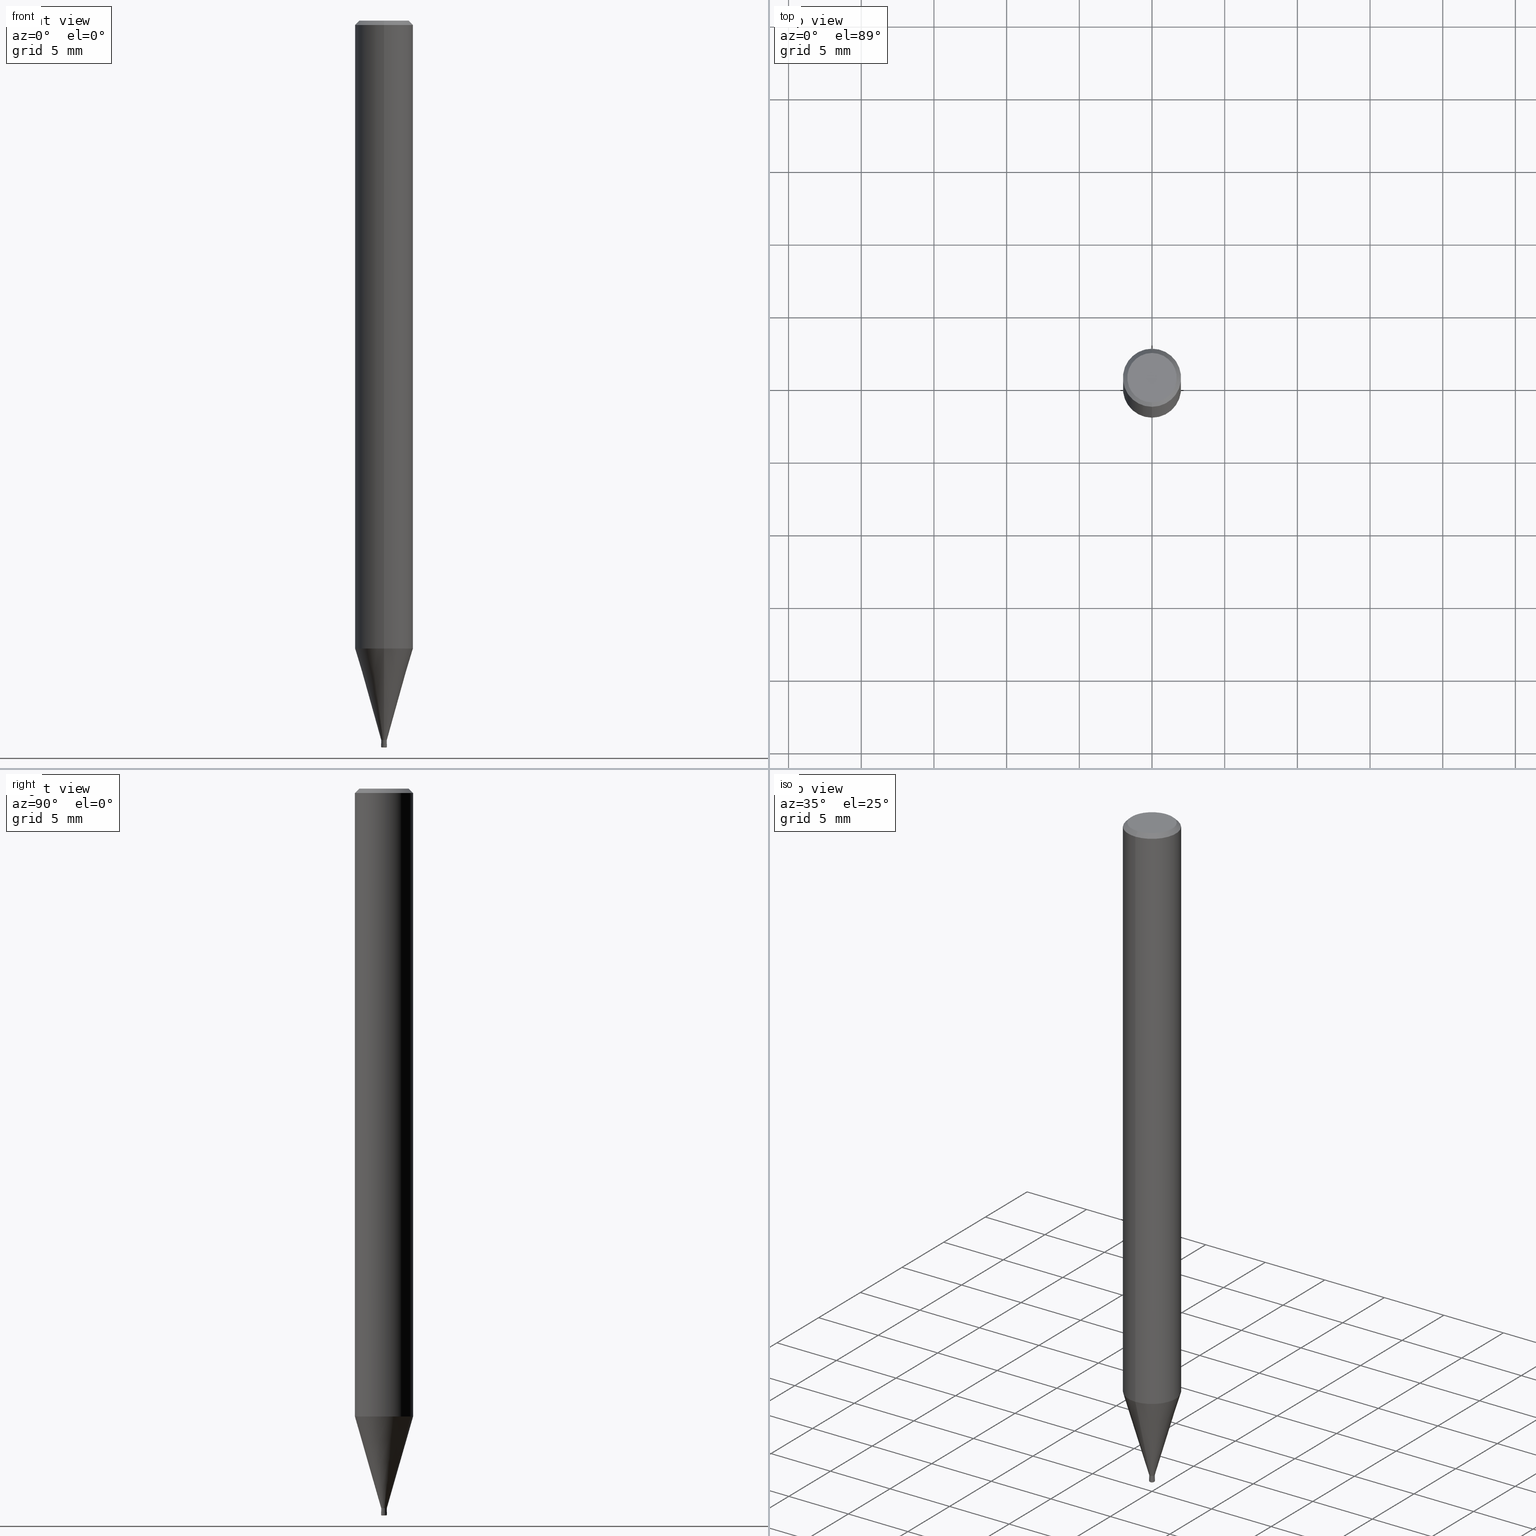
[diagram: canonical four-view strip — front | top / right | iso, engineering-drawing reading convention]
A machine part, canonical four-view strip (front | top / right | iso — engineering-drawing reading convention). The complete STEP part file that produces these views, byte-faithful:
ISO-10303-21;
HEADER;
FILE_DESCRIPTION(('no description'),'unknown implementation level');
FILE_NAME('HLRS4004-005-005-Huellk.stp','  ',('CIMSOURCE GmbH'),('CADClick - KiM GmbH - www.kimweb.de'),'unknown preprocess','ACIS','unknown authorization');
FILE_SCHEMA(('automotive_design'));
ENDSEC;
DATA;
#1=MECHANICAL_DESIGN_GEOMETRIC_PRESENTATION_REPRESENTATION(' ',(#14,#15,#16,#17,#18,#19,#20,#21,#22,#23,#24,#25,#26,#27,#28,#29,#30,#31,#32,#33,#34,#35,#36,#37,#38,#39,#40,#41,#42,#43,#44,#45,#46,#47,#48,#49,#50,#51,#52,#53,#54,#55,#56,#57,#58,#59,#60,#61,#62,#63,#64,#65,#66,#67,#68,#69,#70,#71,#72,#73,#74,#75,#76,#77,#78,#79,#80,#81,#82,#83,#84,#85,#86,#87,#88,#89,#90,#91,#92,#93,#94,#95,#96,#97,#98,#99,#100,#101,#102,#103,#104,#105,#106,#107,#108,#109,#110,#111,#112,#113,#114,#115,#116,#117,#118,#119,#120,#121),#10);
#2=PRODUCT_DEFINITION_CONTEXT('',#122,'design');
#3=APPLICATION_PROTOCOL_DEFINITION('INTERNATIONAL STANDARD','automotive_design',1994,#122);
#4=PRODUCT_CATEGORY_RELATIONSHIP('NONE','NONE',#123,#124);
#5=SHAPE_DEFINITION_REPRESENTATION(#125,#126);
#6=PRODUCT_DEFINITION_CONTEXT('',#127,'design');
#7=APPLICATION_PROTOCOL_DEFINITION('INTERNATIONAL STANDARD','automotive_design',1994,#127);
#8=PRODUCT_CATEGORY_RELATIONSHIP('NONE','NONE',#128,#129);
#9=SHAPE_DEFINITION_REPRESENTATION(#130,#131);
#10= (GEOMETRIC_REPRESENTATION_CONTEXT(3)GLOBAL_UNCERTAINTY_ASSIGNED_CONTEXT((#134))GLOBAL_UNIT_ASSIGNED_CONTEXT((#136,#137,#138))REPRESENTATION_CONTEXT('NONE','WORKSPACE'));
#14=STYLED_ITEM('',(#140),#141);
#15=STYLED_ITEM('',(#142),#143);
#16=STYLED_ITEM('',(#144),#145);
#17=STYLED_ITEM('',(#146),#147);
#18=STYLED_ITEM('',(#148),#149);
#19=STYLED_ITEM('',(#150),#151);
#20=STYLED_ITEM('',(#152),#153);
#21=STYLED_ITEM('',(#154),#155);
#22=STYLED_ITEM('',(#156),#157);
#23=STYLED_ITEM('',(#158),#159);
#24=STYLED_ITEM('',(#160),#161);
#25=STYLED_ITEM('',(#162),#163);
#26=STYLED_ITEM('',(#164),#165);
#27=STYLED_ITEM('',(#166),#167);
#28=STYLED_ITEM('',(#168),#169);
#29=STYLED_ITEM('',(#170),#171);
#30=STYLED_ITEM('',(#172),#173);
#31=STYLED_ITEM('',(#174),#175);
#32=STYLED_ITEM('',(#176),#177);
#33=STYLED_ITEM('',(#178),#179);
#34=STYLED_ITEM('',(#180),#181);
#35=STYLED_ITEM('',(#182),#183);
#36=STYLED_ITEM('',(#184),#185);
#37=STYLED_ITEM('',(#186),#187);
#38=STYLED_ITEM('',(#188),#189);
#39=STYLED_ITEM('',(#190),#191);
#40=STYLED_ITEM('',(#192),#193);
#41=STYLED_ITEM('',(#194),#195);
#42=STYLED_ITEM('',(#196),#197);
#43=STYLED_ITEM('',(#198),#199);
#44=STYLED_ITEM('',(#200),#201);
#45=STYLED_ITEM('',(#202),#203);
#46=STYLED_ITEM('',(#204),#205);
#47=STYLED_ITEM('',(#206),#207);
#48=STYLED_ITEM('',(#208),#209);
#49=STYLED_ITEM('',(#210),#211);
#50=STYLED_ITEM('',(#212),#213);
#51=STYLED_ITEM('',(#214),#215);
#52=STYLED_ITEM('',(#216),#217);
#53=STYLED_ITEM('',(#218),#219);
#54=STYLED_ITEM('',(#220),#221);
#55=STYLED_ITEM('',(#222),#223);
#56=STYLED_ITEM('',(#224),#225);
#57=STYLED_ITEM('',(#226),#227);
#58=STYLED_ITEM('',(#228),#229);
#59=STYLED_ITEM('',(#230),#231);
#60=STYLED_ITEM('',(#232),#233);
#61=STYLED_ITEM('',(#234),#235);
#62=STYLED_ITEM('',(#236),#237);
#63=STYLED_ITEM('',(#238),#239);
#64=STYLED_ITEM('',(#240),#241);
#65=STYLED_ITEM('',(#242),#243);
#66=STYLED_ITEM('',(#244),#245);
#67=STYLED_ITEM('',(#246),#247);
#68=STYLED_ITEM('',(#248),#249);
#69=STYLED_ITEM('',(#250),#251);
#70=STYLED_ITEM('',(#252),#253);
#71=STYLED_ITEM('',(#254),#255);
#72=STYLED_ITEM('',(#256),#257);
#73=STYLED_ITEM('',(#258),#259);
#74=STYLED_ITEM('',(#260),#261);
#75=STYLED_ITEM('',(#262),#263);
#76=STYLED_ITEM('',(#264),#265);
#77=STYLED_ITEM('',(#266),#267);
#78=STYLED_ITEM('',(#268),#269);
#79=STYLED_ITEM('',(#270),#271);
#80=STYLED_ITEM('',(#272),#273);
#81=STYLED_ITEM('',(#274),#275);
#82=STYLED_ITEM('',(#276),#277);
#83=STYLED_ITEM('',(#278),#279);
#84=STYLED_ITEM('',(#280),#281);
#85=STYLED_ITEM('',(#282),#283);
#86=STYLED_ITEM('',(#284),#285);
#87=STYLED_ITEM('',(#286),#287);
#88=STYLED_ITEM('',(#288),#289);
#89=STYLED_ITEM('',(#290),#291);
#90=STYLED_ITEM('',(#292),#293);
#91=STYLED_ITEM('',(#294),#295);
#92=STYLED_ITEM('',(#296),#297);
#93=STYLED_ITEM('',(#298),#299);
#94=STYLED_ITEM('',(#300),#301);
#95=STYLED_ITEM('',(#302),#303);
#96=STYLED_ITEM('',(#304),#305);
#97=STYLED_ITEM('',(#306),#307);
#98=STYLED_ITEM('',(#308),#309);
#99=STYLED_ITEM('',(#310),#311);
#100=STYLED_ITEM('',(#312),#313);
#101=STYLED_ITEM('',(#314),#315);
#102=STYLED_ITEM('',(#316),#317);
#103=STYLED_ITEM('',(#318),#319);
#104=STYLED_ITEM('',(#320),#321);
#105=STYLED_ITEM('',(#322),#323);
#106=STYLED_ITEM('',(#324),#325);
#107=STYLED_ITEM('',(#326),#327);
#108=STYLED_ITEM('',(#328),#329);
#109=STYLED_ITEM('',(#330),#331);
#110=STYLED_ITEM('',(#332),#333);
#111=STYLED_ITEM('',(#334),#335);
#112=STYLED_ITEM('',(#336),#337);
#113=STYLED_ITEM('',(#338),#339);
#114=STYLED_ITEM('',(#340),#341);
#115=STYLED_ITEM('',(#342),#343);
#116=STYLED_ITEM('',(#344),#345);
#117=STYLED_ITEM('',(#346),#347);
#118=STYLED_ITEM('',(#348),#349);
#119=STYLED_ITEM('',(#350),#351);
#120=STYLED_ITEM('',(#352),#353);
#121=STYLED_ITEM('',(#354),#355);
#122=APPLICATION_CONTEXT(' ');
#123=PRODUCT_CATEGORY('part','NONE');
#124=PRODUCT_RELATED_PRODUCT_CATEGORY('detail',' ',(#356));
#125=PRODUCT_DEFINITION_SHAPE('NONE','NONE',#357);
#126=ADVANCED_BREP_SHAPE_REPRESENTATION('1',(#277,#358),#10);
#127=APPLICATION_CONTEXT(' ');
#128=PRODUCT_CATEGORY('part','NONE');
#129=PRODUCT_RELATED_PRODUCT_CATEGORY('detail',' ',(#359));
#130=PRODUCT_DEFINITION_SHAPE('NONE','NONE',#360);
#131=ADVANCED_BREP_SHAPE_REPRESENTATION('2',(#321,#361),#10);
#134=UNCERTAINTY_MEASURE_WITH_UNIT(LENGTH_MEASURE(1.0E-006),#136,'','');
#136= (CONVERSION_BASED_UNIT('MILLIMETRE',#364)LENGTH_UNIT()NAMED_UNIT(#367));
#137= (NAMED_UNIT(#369)PLANE_ANGLE_UNIT()SI_UNIT($,.RADIAN.));
#138= (NAMED_UNIT(#369)SOLID_ANGLE_UNIT()SI_UNIT($,.STERADIAN.));
#140=PRESENTATION_STYLE_ASSIGNMENT((#375));
#141=EDGE_CURVE('',#315,#311,#376,.T.);
#142=PRESENTATION_STYLE_ASSIGNMENT((#377));
#143=EDGE_CURVE('',#245,#197,#378,.T.);
#144=PRESENTATION_STYLE_ASSIGNMENT((#379));
#145=VERTEX_POINT('',#380);
#146=PRESENTATION_STYLE_ASSIGNMENT((#381));
#147=VERTEX_POINT('',#382);
#148=PRESENTATION_STYLE_ASSIGNMENT((#383));
#149=EDGE_CURVE('',#147,#221,#384,.T.);
#150=PRESENTATION_STYLE_ASSIGNMENT((#385));
#151=ADVANCED_FACE('',(#386),#387,.T.);
#152=PRESENTATION_STYLE_ASSIGNMENT((#388));
#153=EDGE_CURVE('',#281,#257,#389,.T.);
#154=PRESENTATION_STYLE_ASSIGNMENT((#390));
#155=EDGE_CURVE('',#311,#275,#391,.T.);
#156=PRESENTATION_STYLE_ASSIGNMENT((#392));
#157=ADVANCED_FACE('',(#393,#394),#395,.T.);
#158=PRESENTATION_STYLE_ASSIGNMENT((#396));
#159=ADVANCED_FACE('',(#397),#398,.T.);
#160=PRESENTATION_STYLE_ASSIGNMENT((#399));
#161=EDGE_CURVE('',#175,#207,#400,.T.);
#162=PRESENTATION_STYLE_ASSIGNMENT((#401));
#163=ADVANCED_FACE('',(#402),#403,.T.);
#164=PRESENTATION_STYLE_ASSIGNMENT((#404));
#165=EDGE_CURVE('',#235,#195,#405,.T.);
#166=PRESENTATION_STYLE_ASSIGNMENT((#406));
#167=EDGE_CURVE('',#347,#171,#407,.T.);
#168=PRESENTATION_STYLE_ASSIGNMENT((#408));
#169=ADVANCED_FACE('',(#409),#410,.T.);
#170=PRESENTATION_STYLE_ASSIGNMENT((#411));
#171=VERTEX_POINT('',#412);
#172=PRESENTATION_STYLE_ASSIGNMENT((#413));
#173=EDGE_CURVE('',#331,#195,#414,.T.);
#174=PRESENTATION_STYLE_ASSIGNMENT((#415));
#175=VERTEX_POINT('',#416);
#176=PRESENTATION_STYLE_ASSIGNMENT((#417));
#177=ADVANCED_FACE('',(#418),#419,.T.);
#178=PRESENTATION_STYLE_ASSIGNMENT((#420));
#179=ADVANCED_FACE('',(#421),#422,.F.);
#180=PRESENTATION_STYLE_ASSIGNMENT((#423));
#181=ADVANCED_FACE('',(#424),#425,.T.);
#182=PRESENTATION_STYLE_ASSIGNMENT((#426));
#183=ADVANCED_FACE('',(#427),#428,.F.);
#184=PRESENTATION_STYLE_ASSIGNMENT((#429));
#185=VERTEX_POINT('',#430);
#186=PRESENTATION_STYLE_ASSIGNMENT((#431));
#187=VERTEX_POINT('',#432);
#188=PRESENTATION_STYLE_ASSIGNMENT((#433));
#189=EDGE_CURVE('',#275,#303,#434,.T.);
#190=PRESENTATION_STYLE_ASSIGNMENT((#435));
#191=EDGE_CURVE('',#257,#279,#436,.T.);
#192=PRESENTATION_STYLE_ASSIGNMENT((#437));
#193=ADVANCED_FACE('',(#438),#439,.T.);
#194=PRESENTATION_STYLE_ASSIGNMENT((#440));
#195=VERTEX_POINT('',#441);
#196=PRESENTATION_STYLE_ASSIGNMENT((#442));
#197=VERTEX_POINT('',#443);
#198=PRESENTATION_STYLE_ASSIGNMENT((#444));
#199=EDGE_CURVE('',#331,#349,#445,.T.);
#200=PRESENTATION_STYLE_ASSIGNMENT((#446));
#201=EDGE_CURVE('',#175,#259,#447,.T.);
#202=PRESENTATION_STYLE_ASSIGNMENT((#448));
#203=EDGE_CURVE('',#185,#145,#449,.T.);
#204=PRESENTATION_STYLE_ASSIGNMENT((#450));
#205=EDGE_CURVE('',#285,#355,#451,.T.);
#206=PRESENTATION_STYLE_ASSIGNMENT((#452));
#207=VERTEX_POINT('',#453);
#208=PRESENTATION_STYLE_ASSIGNMENT((#454));
#209=EDGE_CURVE('',#347,#257,#455,.T.);
#210=PRESENTATION_STYLE_ASSIGNMENT((#456));
#211=ADVANCED_FACE('',(#457),#458,.T.);
#212=PRESENTATION_STYLE_ASSIGNMENT((#459));
#213=EDGE_CURVE('',#231,#253,#460,.T.);
#214=PRESENTATION_STYLE_ASSIGNMENT((#461));
#215=EDGE_CURVE('',#253,#231,#462,.T.);
#216=PRESENTATION_STYLE_ASSIGNMENT((#463));
#217=EDGE_CURVE('',#303,#275,#464,.T.);
#218=PRESENTATION_STYLE_ASSIGNMENT((#465));
#219=ADVANCED_FACE('',(#466),#467,.F.);
#220=PRESENTATION_STYLE_ASSIGNMENT((#468));
#221=VERTEX_POINT('',#469);
#222=PRESENTATION_STYLE_ASSIGNMENT((#470));
#223=EDGE_CURVE('',#279,#187,#471,.T.);
#224=PRESENTATION_STYLE_ASSIGNMENT((#472));
#225=ADVANCED_FACE('',(#473),#474,.T.);
#226=PRESENTATION_STYLE_ASSIGNMENT((#475));
#227=EDGE_CURVE('',#349,#235,#476,.T.);
#228=PRESENTATION_STYLE_ASSIGNMENT((#477));
#229=EDGE_CURVE('',#281,#171,#478,.T.);
#230=PRESENTATION_STYLE_ASSIGNMENT((#479));
#231=VERTEX_POINT('',#480);
#232=PRESENTATION_STYLE_ASSIGNMENT((#481));
#233=ADVANCED_FACE('',(#482),#483,.T.);
#234=PRESENTATION_STYLE_ASSIGNMENT((#484));
#235=VERTEX_POINT('',#485);
#236=PRESENTATION_STYLE_ASSIGNMENT((#486));
#237=EDGE_CURVE('',#259,#293,#487,.T.);
#238=PRESENTATION_STYLE_ASSIGNMENT((#488));
#239=EDGE_CURVE('',#267,#313,#489,.T.);
#240=PRESENTATION_STYLE_ASSIGNMENT((#490));
#241=ADVANCED_FACE('',(#491),#492,.F.);
#242=PRESENTATION_STYLE_ASSIGNMENT((#493));
#243=ADVANCED_FACE('',(#494),#495,.T.);
#244=PRESENTATION_STYLE_ASSIGNMENT((#496));
#245=VERTEX_POINT('',#497);
#246=PRESENTATION_STYLE_ASSIGNMENT((#498));
#247=ADVANCED_FACE('',(#499),#500,.T.);
#248=PRESENTATION_STYLE_ASSIGNMENT((#501));
#249=EDGE_CURVE('',#293,#259,#502,.T.);
#250=PRESENTATION_STYLE_ASSIGNMENT((#503));
#251=EDGE_CURVE('',#293,#221,#504,.T.);
#252=PRESENTATION_STYLE_ASSIGNMENT((#505));
#253=VERTEX_POINT('',#506);
#254=PRESENTATION_STYLE_ASSIGNMENT((#507));
#255=EDGE_CURVE('',#311,#315,#508,.T.);
#256=PRESENTATION_STYLE_ASSIGNMENT((#509));
#257=VERTEX_POINT('',#510);
#258=PRESENTATION_STYLE_ASSIGNMENT((#511));
#259=VERTEX_POINT('',#512);
#260=PRESENTATION_STYLE_ASSIGNMENT((#513));
#261=EDGE_CURVE('',#207,#147,#514,.T.);
#262=PRESENTATION_STYLE_ASSIGNMENT((#515));
#263=ADVANCED_FACE('',(#516),#517,.T.);
#264=PRESENTATION_STYLE_ASSIGNMENT((#518));
#265=EDGE_CURVE('',#355,#185,#519,.T.);
#266=PRESENTATION_STYLE_ASSIGNMENT((#520));
#267=VERTEX_POINT('',#521);
#268=PRESENTATION_STYLE_ASSIGNMENT((#522));
#269=EDGE_CURVE('',#221,#175,#523,.T.);
#270=PRESENTATION_STYLE_ASSIGNMENT((#524));
#271=EDGE_CURVE('',#257,#281,#525,.T.);
#272=PRESENTATION_STYLE_ASSIGNMENT((#526));
#273=EDGE_CURVE('',#187,#279,#527,.T.);
#274=PRESENTATION_STYLE_ASSIGNMENT((#528));
#275=VERTEX_POINT('',#529);
#276=PRESENTATION_STYLE_ASSIGNMENT((#530));
#277=MANIFOLD_SOLID_BREP('1',#531);
#278=PRESENTATION_STYLE_ASSIGNMENT((#532));
#279=VERTEX_POINT('',#533);
#280=PRESENTATION_STYLE_ASSIGNMENT((#534));
#281=VERTEX_POINT('',#535);
#282=PRESENTATION_STYLE_ASSIGNMENT((#536));
#283=EDGE_CURVE('',#195,#267,#537,.T.);
#284=PRESENTATION_STYLE_ASSIGNMENT((#538));
#285=VERTEX_POINT('',#539);
#286=PRESENTATION_STYLE_ASSIGNMENT((#540));
#287=EDGE_CURVE('',#235,#349,#541,.T.);
#288=PRESENTATION_STYLE_ASSIGNMENT((#542));
#289=EDGE_CURVE('',#313,#267,#543,.T.);
#290=PRESENTATION_STYLE_ASSIGNMENT((#544));
#291=ADVANCED_FACE('',(#545),#546,.T.);
#292=PRESENTATION_STYLE_ASSIGNMENT((#547));
#293=VERTEX_POINT('',#548);
#294=PRESENTATION_STYLE_ASSIGNMENT((#549));
#295=EDGE_CURVE('',#275,#231,#550,.T.);
#296=PRESENTATION_STYLE_ASSIGNMENT((#551));
#297=EDGE_CURVE('',#175,#221,#552,.T.);
#298=PRESENTATION_STYLE_ASSIGNMENT((#553));
#299=ADVANCED_FACE('',(#554),#555,.T.);
#300=PRESENTATION_STYLE_ASSIGNMENT((#556));
#301=EDGE_CURVE('',#355,#285,#557,.T.);
#302=PRESENTATION_STYLE_ASSIGNMENT((#558));
#303=VERTEX_POINT('',#559);
#304=PRESENTATION_STYLE_ASSIGNMENT((#560));
#305=ADVANCED_FACE('',(#561),#562,.T.);
#306=PRESENTATION_STYLE_ASSIGNMENT((#563));
#307=EDGE_CURVE('',#145,#185,#564,.T.);
#308=PRESENTATION_STYLE_ASSIGNMENT((#565));
#309=ADVANCED_FACE('',(#566,#567),#568,.T.);
#310=PRESENTATION_STYLE_ASSIGNMENT((#569));
#311=VERTEX_POINT('',#570);
#312=PRESENTATION_STYLE_ASSIGNMENT((#571));
#313=VERTEX_POINT('',#572);
#314=PRESENTATION_STYLE_ASSIGNMENT((#573));
#315=VERTEX_POINT('',#574);
#316=PRESENTATION_STYLE_ASSIGNMENT((#575));
#317=EDGE_CURVE('',#197,#245,#576,.T.);
#318=PRESENTATION_STYLE_ASSIGNMENT((#577));
#319=EDGE_CURVE('',#195,#331,#578,.T.);
#320=PRESENTATION_STYLE_ASSIGNMENT((#579));
#321=MANIFOLD_SOLID_BREP('2',#580);
#322=PRESENTATION_STYLE_ASSIGNMENT((#581));
#323=EDGE_CURVE('',#147,#207,#582,.T.);
#324=PRESENTATION_STYLE_ASSIGNMENT((#583));
#325=EDGE_CURVE('',#171,#347,#584,.T.);
#326=PRESENTATION_STYLE_ASSIGNMENT((#585));
#327=ADVANCED_FACE('',(#586),#587,.T.);
#328=PRESENTATION_STYLE_ASSIGNMENT((#588));
#329=ADVANCED_FACE('',(#589),#590,.T.);
#330=PRESENTATION_STYLE_ASSIGNMENT((#591));
#331=VERTEX_POINT('',#592);
#332=PRESENTATION_STYLE_ASSIGNMENT((#593));
#333=EDGE_CURVE('',#253,#303,#594,.T.);
#334=PRESENTATION_STYLE_ASSIGNMENT((#595));
#335=EDGE_CURVE('',#285,#245,#596,.T.);
#336=PRESENTATION_STYLE_ASSIGNMENT((#597));
#337=EDGE_CURVE('',#145,#285,#598,.T.);
#338=PRESENTATION_STYLE_ASSIGNMENT((#599));
#339=EDGE_CURVE('',#313,#331,#600,.T.);
#340=PRESENTATION_STYLE_ASSIGNMENT((#601));
#341=EDGE_CURVE('',#187,#281,#602,.T.);
#342=PRESENTATION_STYLE_ASSIGNMENT((#603));
#343=ADVANCED_FACE('',(#604,#605),#606,.T.);
#344=PRESENTATION_STYLE_ASSIGNMENT((#607));
#345=EDGE_CURVE('',#303,#315,#608,.T.);
#346=PRESENTATION_STYLE_ASSIGNMENT((#609));
#347=VERTEX_POINT('',#610);
#348=PRESENTATION_STYLE_ASSIGNMENT((#611));
#349=VERTEX_POINT('',#612);
#350=PRESENTATION_STYLE_ASSIGNMENT((#613));
#351=EDGE_CURVE('',#197,#355,#614,.T.);
#352=PRESENTATION_STYLE_ASSIGNMENT((#615));
#353=ADVANCED_FACE('',(#616,#617),#618,.T.);
#354=PRESENTATION_STYLE_ASSIGNMENT((#619));
#355=VERTEX_POINT('',#620);
#356=PRODUCT('1','1','PART-1-DESC',(#621));
#357=PRODUCT_DEFINITION('NONE','NONE',#622,#2);
#358=AXIS2_PLACEMENT_3D('',#623,#624,#625);
#359=PRODUCT('2','2','PART-2-DESC',(#626));
#360=PRODUCT_DEFINITION('NONE','NONE',#627,#6);
#361=AXIS2_PLACEMENT_3D('',#628,#629,#630);
#364=LENGTH_MEASURE_WITH_UNIT(LENGTH_MEASURE(1.0),#631);
#367=DIMENSIONAL_EXPONENTS(1.0,0.0,0.0,0.0,0.0,0.0,0.0);
#369=DIMENSIONAL_EXPONENTS(0.0,0.0,0.0,0.0,0.0,0.0,0.0);
#375=CURVE_STYLE('',#632,POSITIVE_LENGTH_MEASURE(1.0E-006),#633);
#376=CIRCLE('',#634,0.09);
#377=CURVE_STYLE('',#635,POSITIVE_LENGTH_MEASURE(1.0E-006),#636);
#378=CIRCLE('',#637,0.09);
#379=POINT_STYLE(' ',#638,POSITIVE_LENGTH_MEASURE(1.0E-006),#639);
#380=CARTESIAN_POINT('',(0.0,0.19495,-49.75));
#381=POINT_STYLE(' ',#640,POSITIVE_LENGTH_MEASURE(1.0E-006),#641);
#382=CARTESIAN_POINT('',(0.0,0.15,-49.99));
#383=CURVE_STYLE('',#642,POSITIVE_LENGTH_MEASURE(1.0E-006),#643);
#384=CIRCLE('',#644,0.05);
#385=SURFACE_STYLE_USAGE(.BOTH.,#645);
#386=FACE_OUTER_BOUND('',#646,.T.);
#387=CYLINDRICAL_SURFACE('',#647,0.19245);
#388=CURVE_STYLE('',#648,POSITIVE_LENGTH_MEASURE(1.0E-006),#649);
#389=CIRCLE('',#650,2.0);
#390=CURVE_STYLE('',#651,POSITIVE_LENGTH_MEASURE(1.0E-006),#652);
#391=LINE('',#653,#654);
#392=SURFACE_STYLE_USAGE(.BOTH.,#655);
#393=FACE_BOUND('',#656,.T.);
#394=FACE_OUTER_BOUND('',#657,.T.);
#395=PLANE('',#658);
#396=SURFACE_STYLE_USAGE(.BOTH.,#659);
#397=FACE_OUTER_BOUND('',#660,.T.);
#398=CONICAL_SURFACE('',#661,0.142475,1.47579965541249);
#399=CURVE_STYLE('',#662,POSITIVE_LENGTH_MEASURE(1.0E-006),#663);
#400=CIRCLE('',#664,0.05);
#401=SURFACE_STYLE_USAGE(.BOTH.,#665);
#402=FACE_OUTER_BOUND('',#666,.T.);
#403=PLANE('',#667);
#404=CURVE_STYLE('',#668,POSITIVE_LENGTH_MEASURE(1.0E-006),#669);
#405=LINE('',#670,#671);
#406=CURVE_STYLE('',#672,POSITIVE_LENGTH_MEASURE(1.0E-006),#673);
#407=CIRCLE('',#674,2.0);
#408=SURFACE_STYLE_USAGE(.BOTH.,#675);
#409=FACE_OUTER_BOUND('',#676,.T.);
#410=TOROIDAL_SURFACE('',#677,0.15,0.05);
#411=POINT_STYLE(' ',#678,POSITIVE_LENGTH_MEASURE(1.0E-006),#679);
#412=CARTESIAN_POINT('',(0.0,2.0,-43.186));
#413=CURVE_STYLE('',#680,POSITIVE_LENGTH_MEASURE(1.0E-006),#681);
#414=CIRCLE('',#682,0.19245);
#415=POINT_STYLE(' ',#683,POSITIVE_LENGTH_MEASURE(1.0E-006),#684);
#416=CARTESIAN_POINT('',(2.44921270764475E-017,-0.2,-49.94));
#417=SURFACE_STYLE_USAGE(.BOTH.,#685);
#418=FACE_OUTER_BOUND('',#686,.T.);
#419=CONICAL_SURFACE('',#687,1.85,0.785398163397453);
#420=SURFACE_STYLE_USAGE(.BOTH.,#688);
#421=FACE_OUTER_BOUND('',#689,.T.);
#422=CONICAL_SURFACE('',#690,0.14245,1.47575464789401);
#423=SURFACE_STYLE_USAGE(.BOTH.,#691);
#424=FACE_OUTER_BOUND('',#692,.T.);
#425=CONICAL_SURFACE('',#693,0.19995,0.000526315740875831);
#426=SURFACE_STYLE_USAGE(.BOTH.,#694);
#427=FACE_OUTER_BOUND('',#695,.T.);
#428=CYLINDRICAL_SURFACE('',#696,0.09);
#429=POINT_STYLE(' ',#697,POSITIVE_LENGTH_MEASURE(1.0E-006),#698);
#430=CARTESIAN_POINT('',(2.38737008677672E-017,-0.19495,-49.75));
#431=POINT_STYLE(' ',#699,POSITIVE_LENGTH_MEASURE(1.0E-006),#700);
#432=CARTESIAN_POINT('',(0.0,1.7,0.00999999999999801));
#433=CURVE_STYLE('',#701,POSITIVE_LENGTH_MEASURE(1.0E-006),#702);
#434=CIRCLE('',#703,0.09);
#435=CURVE_STYLE('',#704,POSITIVE_LENGTH_MEASURE(1.0E-006),#705);
#436=LINE('',#706,#707);
#437=SURFACE_STYLE_USAGE(.BOTH.,#708);
#438=FACE_OUTER_BOUND('',#709,.T.);
#439=CONICAL_SURFACE('',#710,1.85,0.785398163397453);
#440=POINT_STYLE(' ',#711,POSITIVE_LENGTH_MEASURE(1.0E-006),#712);
#441=CARTESIAN_POINT('',(0.0,0.19245,-49.49));
#442=POINT_STYLE(' ',#713,POSITIVE_LENGTH_MEASURE(1.0E-006),#714);
#443=CARTESIAN_POINT('',(1.10214571844014E-017,-0.09,-49.93));
#444=CURVE_STYLE('',#715,POSITIVE_LENGTH_MEASURE(1.0E-006),#716);
#445=LINE('',#717,#718);
#446=CURVE_STYLE('',#719,POSITIVE_LENGTH_MEASURE(1.0E-006),#720);
#447=LINE('',#721,#722);
#448=CURVE_STYLE('',#723,POSITIVE_LENGTH_MEASURE(1.0E-006),#724);
#449=CIRCLE('',#725,0.19495);
#450=CURVE_STYLE('',#726,POSITIVE_LENGTH_MEASURE(1.0E-006),#727);
#451=CIRCLE('',#728,0.09);
#452=POINT_STYLE(' ',#729,POSITIVE_LENGTH_MEASURE(1.0E-006),#730);
#453=CARTESIAN_POINT('',(1.83690953073357E-017,-0.15,-49.99));
#454=CURVE_STYLE('',#731,POSITIVE_LENGTH_MEASURE(1.0E-006),#732);
#455=LINE('',#733,#734);
#456=SURFACE_STYLE_USAGE(.BOTH.,#735);
#457=FACE_OUTER_BOUND('',#736,.T.);
#458=CONICAL_SURFACE('',#737,1.0962,0.279231732547063);
#459=CURVE_STYLE('',#738,POSITIVE_LENGTH_MEASURE(1.0E-006),#739);
#460=CIRCLE('',#740,0.1949);
#461=CURVE_STYLE('',#741,POSITIVE_LENGTH_MEASURE(1.0E-006),#742);
#462=CIRCLE('',#743,0.1949);
#463=CURVE_STYLE('',#744,POSITIVE_LENGTH_MEASURE(1.0E-006),#745);
#464=CIRCLE('',#746,0.09);
#465=SURFACE_STYLE_USAGE(.BOTH.,#747);
#466=FACE_OUTER_BOUND('',#748,.T.);
#467=CYLINDRICAL_SURFACE('',#749,0.09);
#468=POINT_STYLE(' ',#750,POSITIVE_LENGTH_MEASURE(1.0E-006),#751);
#469=CARTESIAN_POINT('',(0.0,0.2,-49.94));
#470=CURVE_STYLE('',#752,POSITIVE_LENGTH_MEASURE(1.0E-006),#753);
#471=CIRCLE('',#754,1.7);
#472=SURFACE_STYLE_USAGE(.BOTH.,#755);
#473=FACE_OUTER_BOUND('',#756,.T.);
#474=TOROIDAL_SURFACE('',#757,0.15,0.05);
#475=CURVE_STYLE('',#758,POSITIVE_LENGTH_MEASURE(1.0E-006),#759);
#476=CIRCLE('',#760,1.99995);
#477=CURVE_STYLE('',#761,POSITIVE_LENGTH_MEASURE(1.0E-006),#762);
#478=LINE('',#763,#764);
#479=POINT_STYLE(' ',#765,POSITIVE_LENGTH_MEASURE(1.0E-006),#766);
#480=CARTESIAN_POINT('',(2.38675778359981E-017,-0.1949,-49.75));
#481=SURFACE_STYLE_USAGE(.BOTH.,#767);
#482=FACE_OUTER_BOUND('',#768,.T.);
#483=CYLINDRICAL_SURFACE('',#769,0.09);
#484=POINT_STYLE(' ',#770,POSITIVE_LENGTH_MEASURE(1.0E-006),#771);
#485=CARTESIAN_POINT('',(0.0,1.99995,-43.186));
#486=CURVE_STYLE('',#772,POSITIVE_LENGTH_MEASURE(1.0E-006),#773);
#487=CIRCLE('',#774,0.1999);
#488=CURVE_STYLE('',#775,POSITIVE_LENGTH_MEASURE(1.0E-006),#776);
#489=CIRCLE('',#777,0.19245);
#490=SURFACE_STYLE_USAGE(.BOTH.,#778);
#491=FACE_OUTER_BOUND('',#779,.T.);
#492=CONICAL_SURFACE('',#780,0.14245,1.47575464789401);
#493=SURFACE_STYLE_USAGE(.BOTH.,#781);
#494=FACE_OUTER_BOUND('',#782,.T.);
#495=CONICAL_SURFACE('',#783,0.19995,0.000526315740875831);
#496=POINT_STYLE(' ',#784,POSITIVE_LENGTH_MEASURE(1.0E-006),#785);
#497=CARTESIAN_POINT('',(0.0,0.09,-49.93));
#498=SURFACE_STYLE_USAGE(.BOTH.,#786);
#499=FACE_OUTER_BOUND('',#787,.T.);
#500=CYLINDRICAL_SURFACE('',#788,2.0);
#501=CURVE_STYLE('',#789,POSITIVE_LENGTH_MEASURE(1.0E-006),#790);
#502=CIRCLE('',#791,0.1999);
#503=CURVE_STYLE('',#792,POSITIVE_LENGTH_MEASURE(1.0E-006),#793);
#504=LINE('',#794,#795);
#505=POINT_STYLE(' ',#796,POSITIVE_LENGTH_MEASURE(1.0E-006),#797);
#506=CARTESIAN_POINT('',(0.0,0.1949,-49.75));
#507=CURVE_STYLE('',#798,POSITIVE_LENGTH_MEASURE(1.0E-006),#799);
#508=CIRCLE('',#800,0.09);
#509=POINT_STYLE(' ',#801,POSITIVE_LENGTH_MEASURE(1.0E-006),#802);
#510=CARTESIAN_POINT('',(2.44921270764475E-016,-2.0,-0.289999999999999));
#511=POINT_STYLE(' ',#803,POSITIVE_LENGTH_MEASURE(1.0E-006),#804);
#512=CARTESIAN_POINT('',(2.44798810129093E-017,-0.1999,-49.75));
#513=CURVE_STYLE('',#805,POSITIVE_LENGTH_MEASURE(1.0E-006),#806);
#514=CIRCLE('',#807,0.15);
#515=SURFACE_STYLE_USAGE(.BOTH.,#808);
#516=FACE_OUTER_BOUND('',#809,.T.);
#517=CYLINDRICAL_SURFACE('',#810,0.19245);
#518=CURVE_STYLE('',#811,POSITIVE_LENGTH_MEASURE(1.0E-006),#812);
#519=LINE('',#813,#814);
#520=POINT_STYLE(' ',#815,POSITIVE_LENGTH_MEASURE(1.0E-006),#816);
#521=CARTESIAN_POINT('',(0.0,0.19245,-49.75));
#522=CURVE_STYLE('',#817,POSITIVE_LENGTH_MEASURE(1.0E-006),#818);
#523=CIRCLE('',#819,0.2);
#524=CURVE_STYLE('',#820,POSITIVE_LENGTH_MEASURE(1.0E-006),#821);
#525=CIRCLE('',#822,2.0);
#526=CURVE_STYLE('',#823,POSITIVE_LENGTH_MEASURE(1.0E-006),#824);
#527=CIRCLE('',#825,1.7);
#528=POINT_STYLE(' ',#826,POSITIVE_LENGTH_MEASURE(1.0E-006),#827);
#529=CARTESIAN_POINT('',(1.10214571844014E-017,-0.09,-49.76));
#530=SURFACE_STYLE_USAGE(.BOTH.,#828);
#531=CLOSED_SHELL('',(#233,#329,#151,#305,#247,#193,#353,#163,#177,#291,#211,#263,#309,#159,#299,#327));
#532=POINT_STYLE(' ',#829,POSITIVE_LENGTH_MEASURE(1.0E-006),#830);
#533=CARTESIAN_POINT('',(2.08183080149804E-016,-1.7,0.00999999999999801));
#534=POINT_STYLE(' ',#831,POSITIVE_LENGTH_MEASURE(1.0E-006),#832);
#535=CARTESIAN_POINT('',(0.0,2.0,-0.289999999999999));
#536=CURVE_STYLE('',#833,POSITIVE_LENGTH_MEASURE(1.0E-006),#834);
#537=LINE('',#835,#836);
#538=POINT_STYLE(' ',#837,POSITIVE_LENGTH_MEASURE(1.0E-006),#838);
#539=CARTESIAN_POINT('',(0.0,0.09,-49.76));
#540=CURVE_STYLE('',#839,POSITIVE_LENGTH_MEASURE(1.0E-006),#840);
#541=CIRCLE('',#841,1.99995);
#542=CURVE_STYLE('',#842,POSITIVE_LENGTH_MEASURE(1.0E-006),#843);
#543=CIRCLE('',#844,0.19245);
#544=SURFACE_STYLE_USAGE(.BOTH.,#845);
#545=FACE_OUTER_BOUND('',#846,.T.);
#546=CYLINDRICAL_SURFACE('',#847,2.0);
#547=POINT_STYLE(' ',#848,POSITIVE_LENGTH_MEASURE(1.0E-006),#849);
#548=CARTESIAN_POINT('',(0.0,0.1999,-49.75));
#549=CURVE_STYLE('',#850,POSITIVE_LENGTH_MEASURE(1.0E-006),#851);
#550=LINE('',#852,#853);
#551=CURVE_STYLE('',#854,POSITIVE_LENGTH_MEASURE(1.0E-006),#855);
#552=CIRCLE('',#856,0.2);
#553=SURFACE_STYLE_USAGE(.BOTH.,#857);
#554=FACE_OUTER_BOUND('',#858,.T.);
#555=CYLINDRICAL_SURFACE('',#859,0.09);
#556=CURVE_STYLE('',#860,POSITIVE_LENGTH_MEASURE(1.0E-006),#861);
#557=CIRCLE('',#862,0.09);
#558=POINT_STYLE(' ',#863,POSITIVE_LENGTH_MEASURE(1.0E-006),#864);
#559=CARTESIAN_POINT('',(0.0,0.09,-49.76));
#560=SURFACE_STYLE_USAGE(.BOTH.,#865);
#561=FACE_OUTER_BOUND('',#866,.T.);
#562=CONICAL_SURFACE('',#867,1.0962,0.279231732547063);
#563=CURVE_STYLE('',#868,POSITIVE_LENGTH_MEASURE(1.0E-006),#869);
#564=CIRCLE('',#870,0.19495);
#565=SURFACE_STYLE_USAGE(.BOTH.,#871);
#566=FACE_OUTER_BOUND('',#872,.T.);
#567=FACE_BOUND('',#873,.T.);
#568=PLANE('',#874);
#569=POINT_STYLE(' ',#875,POSITIVE_LENGTH_MEASURE(1.0E-006),#876);
#570=CARTESIAN_POINT('',(1.10214571844014E-017,-0.09,-49.99));
#571=POINT_STYLE(' ',#877,POSITIVE_LENGTH_MEASURE(1.0E-006),#878);
#572=CARTESIAN_POINT('',(2.35675492793117E-017,-0.19245,-49.75));
#573=POINT_STYLE(' ',#879,POSITIVE_LENGTH_MEASURE(1.0E-006),#880);
#574=CARTESIAN_POINT('',(0.0,0.09,-49.99));
#575=CURVE_STYLE('',#881,POSITIVE_LENGTH_MEASURE(1.0E-006),#882);
#576=CIRCLE('',#883,0.09);
#577=CURVE_STYLE('',#884,POSITIVE_LENGTH_MEASURE(1.0E-006),#885);
#578=CIRCLE('',#886,0.19245);
#579=SURFACE_STYLE_USAGE(.BOTH.,#887);
#580=CLOSED_SHELL('',(#183,#169,#243,#241,#179,#343,#181,#225,#157,#219));
#581=CURVE_STYLE('',#888,POSITIVE_LENGTH_MEASURE(1.0E-006),#889);
#582=CIRCLE('',#890,0.15);
#583=CURVE_STYLE('',#891,POSITIVE_LENGTH_MEASURE(1.0E-006),#892);
#584=CIRCLE('',#893,2.0);
#585=SURFACE_STYLE_USAGE(.BOTH.,#894);
#586=FACE_OUTER_BOUND('',#895,.T.);
#587=PLANE('',#896);
#588=SURFACE_STYLE_USAGE(.BOTH.,#897);
#589=FACE_OUTER_BOUND('',#898,.T.);
#590=CONICAL_SURFACE('',#899,0.142475,1.47579965541249);
#591=POINT_STYLE(' ',#900,POSITIVE_LENGTH_MEASURE(1.0E-006),#901);
#592=CARTESIAN_POINT('',(2.35675492793117E-017,-0.19245,-49.49));
#593=CURVE_STYLE('',#902,POSITIVE_LENGTH_MEASURE(1.0E-006),#903);
#594=LINE('',#904,#905);
#595=CURVE_STYLE('',#906,POSITIVE_LENGTH_MEASURE(1.0E-006),#907);
#596=LINE('',#908,#909);
#597=CURVE_STYLE('',#910,POSITIVE_LENGTH_MEASURE(1.0E-006),#911);
#598=LINE('',#912,#913);
#599=CURVE_STYLE('',#914,POSITIVE_LENGTH_MEASURE(1.0E-006),#915);
#600=LINE('',#916,#917);
#601=CURVE_STYLE('',#918,POSITIVE_LENGTH_MEASURE(1.0E-006),#919);
#602=LINE('',#920,#921);
#603=SURFACE_STYLE_USAGE(.BOTH.,#922);
#604=FACE_OUTER_BOUND('',#923,.T.);
#605=FACE_BOUND('',#924,.T.);
#606=PLANE('',#925);
#607=CURVE_STYLE('',#926,POSITIVE_LENGTH_MEASURE(1.0E-006),#927);
#608=LINE('',#928,#929);
#609=POINT_STYLE(' ',#930,POSITIVE_LENGTH_MEASURE(1.0E-006),#931);
#610=CARTESIAN_POINT('',(2.44921270764475E-016,-2.0,-43.186));
#611=POINT_STYLE(' ',#932,POSITIVE_LENGTH_MEASURE(1.0E-006),#933);
#612=CARTESIAN_POINT('',(2.44915147732706E-016,-1.99995,-43.186));
#613=CURVE_STYLE('',#934,POSITIVE_LENGTH_MEASURE(1.0E-006),#935);
#614=LINE('',#936,#937);
#615=SURFACE_STYLE_USAGE(.BOTH.,#938);
#616=FACE_OUTER_BOUND('',#939,.T.);
#617=FACE_BOUND('',#940,.T.);
#618=PLANE('',#941);
#619=POINT_STYLE(' ',#942,POSITIVE_LENGTH_MEASURE(1.0E-006),#943);
#620=CARTESIAN_POINT('',(1.10214571844014E-017,-0.09,-49.76));
#621=PRODUCT_CONTEXT('',#122,'mechanical');
#622=PRODUCT_DEFINITION_FORMATION_WITH_SPECIFIED_SOURCE(' ','NONE',#356,.NOT_KNOWN.);
#623=CARTESIAN_POINT('',(0.0,0.0,0.0));
#624=DIRECTION('',(0.0,0.0,1.0));
#625=DIRECTION('',(1.0,0.0,0.0));
#626=PRODUCT_CONTEXT('',#127,'mechanical');
#627=PRODUCT_DEFINITION_FORMATION_WITH_SPECIFIED_SOURCE(' ','NONE',#359,.NOT_KNOWN.);
#628=CARTESIAN_POINT('',(0.0,0.0,0.0));
#629=DIRECTION('',(0.0,0.0,1.0));
#630=DIRECTION('',(1.0,0.0,0.0));
#631= (NAMED_UNIT(#367)LENGTH_UNIT()SI_UNIT(.MILLI.,.METRE.));
#632=DRAUGHTING_PRE_DEFINED_CURVE_FONT('continuous');
#633=COLOUR_RGB('',0.800000011920929,0.800000011920929,0.800000011920929);
#634=AXIS2_PLACEMENT_3D('',#945,#946,#947);
#635=DRAUGHTING_PRE_DEFINED_CURVE_FONT('continuous');
#636=COLOUR_RGB('',0.498039215803146,0.498039215803146,0.498039215803146);
#637=AXIS2_PLACEMENT_3D('',#948,#949,#950);
#638=PRE_DEFINED_MARKER('');
#639=COLOUR_RGB('',0.498039215803146,0.498039215803146,0.498039215803146);
#640=PRE_DEFINED_MARKER('');
#641=COLOUR_RGB('',0.800000011920929,0.800000011920929,0.800000011920929);
#642=DRAUGHTING_PRE_DEFINED_CURVE_FONT('continuous');
#643=COLOUR_RGB('',0.800000011920929,0.800000011920929,0.800000011920929);
#644=AXIS2_PLACEMENT_3D('',#951,#952,#953);
#645=SURFACE_SIDE_STYLE('',(#954));
#646=EDGE_LOOP('',(#955,#956,#957,#958));
#647=AXIS2_PLACEMENT_3D('',#959,#960,#961);
#648=DRAUGHTING_PRE_DEFINED_CURVE_FONT('continuous');
#649=COLOUR_RGB('',0.498039215803146,0.498039215803146,0.498039215803146);
#650=AXIS2_PLACEMENT_3D('',#962,#963,#964);
#651=DRAUGHTING_PRE_DEFINED_CURVE_FONT('continuous');
#652=COLOUR_RGB('',0.800000011920929,0.800000011920929,0.800000011920929);
#653=CARTESIAN_POINT('',(1.10214571844014E-017,-0.09,-49.875));
#654=VECTOR('',#965,1.0);
#655=SURFACE_SIDE_STYLE('',(#966));
#656=EDGE_LOOP('',(#967,#968));
#657=EDGE_LOOP('',(#969,#970));
#658=AXIS2_PLACEMENT_3D('',#971,#972,#973);
#659=SURFACE_SIDE_STYLE('',(#974));
#660=EDGE_LOOP('',(#975,#976,#977,#978));
#661=AXIS2_PLACEMENT_3D('',#979,#980,#981);
#662=DRAUGHTING_PRE_DEFINED_CURVE_FONT('continuous');
#663=COLOUR_RGB('',0.800000011920929,0.800000011920929,0.800000011920929);
#664=AXIS2_PLACEMENT_3D('',#982,#983,#984);
#665=SURFACE_SIDE_STYLE('',(#985));
#666=EDGE_LOOP('',(#986,#987));
#667=AXIS2_PLACEMENT_3D('',#988,#989,#990);
#668=DRAUGHTING_PRE_DEFINED_CURVE_FONT('continuous');
#669=COLOUR_RGB('',0.498039215803146,0.498039215803146,0.498039215803146);
#670=CARTESIAN_POINT('',(-1.34241348506009E-016,1.0962,-46.338));
#671=VECTOR('',#991,1.0);
#672=DRAUGHTING_PRE_DEFINED_CURVE_FONT('continuous');
#673=COLOUR_RGB('',0.498039215803146,0.498039215803146,0.498039215803146);
#674=AXIS2_PLACEMENT_3D('',#992,#993,#994);
#675=SURFACE_SIDE_STYLE('',(#995));
#676=EDGE_LOOP('',(#996,#997,#998,#999));
#677=AXIS2_PLACEMENT_3D('',#1000,#1001,#1002);
#678=PRE_DEFINED_MARKER('');
#679=COLOUR_RGB('',0.498039215803146,0.498039215803146,0.498039215803146);
#680=DRAUGHTING_PRE_DEFINED_CURVE_FONT('continuous');
#681=COLOUR_RGB('',0.498039215803146,0.498039215803146,0.498039215803146);
#682=AXIS2_PLACEMENT_3D('',#1003,#1004,#1005);
#683=PRE_DEFINED_MARKER('');
#684=COLOUR_RGB('',0.800000011920929,0.800000011920929,0.800000011920929);
#685=SURFACE_SIDE_STYLE('',(#1006));
#686=EDGE_LOOP('',(#1007,#1008,#1009,#1010));
#687=AXIS2_PLACEMENT_3D('',#1011,#1012,#1013);
#688=SURFACE_SIDE_STYLE('',(#1014));
#689=EDGE_LOOP('',(#1015,#1016,#1017,#1018));
#690=AXIS2_PLACEMENT_3D('',#1019,#1020,#1021);
#691=SURFACE_SIDE_STYLE('',(#1022));
#692=EDGE_LOOP('',(#1023,#1024,#1025,#1026));
#693=AXIS2_PLACEMENT_3D('',#1027,#1028,#1029);
#694=SURFACE_SIDE_STYLE('',(#1030));
#695=EDGE_LOOP('',(#1031,#1032,#1033,#1034));
#696=AXIS2_PLACEMENT_3D('',#1035,#1036,#1037);
#697=PRE_DEFINED_MARKER('');
#698=COLOUR_RGB('',0.498039215803146,0.498039215803146,0.498039215803146);
#699=PRE_DEFINED_MARKER('');
#700=COLOUR_RGB('',0.498039215803146,0.498039215803146,0.498039215803146);
#701=DRAUGHTING_PRE_DEFINED_CURVE_FONT('continuous');
#702=COLOUR_RGB('',0.800000011920929,0.800000011920929,0.800000011920929);
#703=AXIS2_PLACEMENT_3D('',#1038,#1039,#1040);
#704=DRAUGHTING_PRE_DEFINED_CURVE_FONT('continuous');
#705=COLOUR_RGB('',0.498039215803146,0.498039215803146,0.498039215803146);
#706=CARTESIAN_POINT('',(2.2655217545714E-016,-1.85,-0.140000000000001));
#707=VECTOR('',#1041,1.0);
#708=SURFACE_SIDE_STYLE('',(#1042));
#709=EDGE_LOOP('',(#1043,#1044,#1045,#1046));
#710=AXIS2_PLACEMENT_3D('',#1047,#1048,#1049);
#711=PRE_DEFINED_MARKER('');
#712=COLOUR_RGB('',0.498039215803146,0.498039215803146,0.498039215803146);
#713=PRE_DEFINED_MARKER('');
#714=COLOUR_RGB('',0.498039215803146,0.498039215803146,0.498039215803146);
#715=DRAUGHTING_PRE_DEFINED_CURVE_FONT('continuous');
#716=COLOUR_RGB('',0.498039215803146,0.498039215803146,0.498039215803146);
#717=CARTESIAN_POINT('',(1.34241348506009E-016,-1.0962,-46.338));
#718=VECTOR('',#1050,1.0);
#719=DRAUGHTING_PRE_DEFINED_CURVE_FONT('continuous');
#720=COLOUR_RGB('',0.800000011920929,0.800000011920929,0.800000011920929);
#721=CARTESIAN_POINT('',(2.44860040446784E-017,-0.19995,-49.845));
#722=VECTOR('',#1051,1.0);
#723=DRAUGHTING_PRE_DEFINED_CURVE_FONT('continuous');
#724=COLOUR_RGB('',0.498039215803146,0.498039215803146,0.498039215803146);
#725=AXIS2_PLACEMENT_3D('',#1052,#1053,#1054);
#726=DRAUGHTING_PRE_DEFINED_CURVE_FONT('continuous');
#727=COLOUR_RGB('',0.498039215803146,0.498039215803146,0.498039215803146);
#728=AXIS2_PLACEMENT_3D('',#1055,#1056,#1057);
#729=PRE_DEFINED_MARKER('');
#730=COLOUR_RGB('',0.800000011920929,0.800000011920929,0.800000011920929);
#731=DRAUGHTING_PRE_DEFINED_CURVE_FONT('continuous');
#732=COLOUR_RGB('',0.498039215803146,0.498039215803146,0.498039215803146);
#733=CARTESIAN_POINT('',(2.44921270764475E-016,-2.0,-21.738));
#734=VECTOR('',#1058,1.0);
#735=SURFACE_SIDE_STYLE('',(#1059));
#736=EDGE_LOOP('',(#1060,#1061,#1062,#1063));
#737=AXIS2_PLACEMENT_3D('',#1064,#1065,#1066);
#738=DRAUGHTING_PRE_DEFINED_CURVE_FONT('continuous');
#739=COLOUR_RGB('',0.800000011920929,0.800000011920929,0.800000011920929);
#740=AXIS2_PLACEMENT_3D('',#1067,#1068,#1069);
#741=DRAUGHTING_PRE_DEFINED_CURVE_FONT('continuous');
#742=COLOUR_RGB('',0.800000011920929,0.800000011920929,0.800000011920929);
#743=AXIS2_PLACEMENT_3D('',#1070,#1071,#1072);
#744=DRAUGHTING_PRE_DEFINED_CURVE_FONT('continuous');
#745=COLOUR_RGB('',0.800000011920929,0.800000011920929,0.800000011920929);
#746=AXIS2_PLACEMENT_3D('',#1073,#1074,#1075);
#747=SURFACE_SIDE_STYLE('',(#1076));
#748=EDGE_LOOP('',(#1077,#1078,#1079,#1080));
#749=AXIS2_PLACEMENT_3D('',#1081,#1082,#1083);
#750=PRE_DEFINED_MARKER('');
#751=COLOUR_RGB('',0.800000011920929,0.800000011920929,0.800000011920929);
#752=DRAUGHTING_PRE_DEFINED_CURVE_FONT('continuous');
#753=COLOUR_RGB('',0.498039215803146,0.498039215803146,0.498039215803146);
#754=AXIS2_PLACEMENT_3D('',#1084,#1085,#1086);
#755=SURFACE_SIDE_STYLE('',(#1087));
#756=EDGE_LOOP('',(#1088,#1089,#1090,#1091));
#757=AXIS2_PLACEMENT_3D('',#1092,#1093,#1094);
#758=DRAUGHTING_PRE_DEFINED_CURVE_FONT('continuous');
#759=COLOUR_RGB('',0.498039215803146,0.498039215803146,0.498039215803146);
#760=AXIS2_PLACEMENT_3D('',#1095,#1096,#1097);
#761=DRAUGHTING_PRE_DEFINED_CURVE_FONT('continuous');
#762=COLOUR_RGB('',0.498039215803146,0.498039215803146,0.498039215803146);
#763=CARTESIAN_POINT('',(-2.44921270764475E-016,2.0,-21.738));
#764=VECTOR('',#1098,1.0);
#765=PRE_DEFINED_MARKER('');
#766=COLOUR_RGB('',0.800000011920929,0.800000011920929,0.800000011920929);
#767=SURFACE_SIDE_STYLE('',(#1099));
#768=EDGE_LOOP('',(#1100,#1101,#1102,#1103));
#769=AXIS2_PLACEMENT_3D('',#1104,#1105,#1106);
#770=PRE_DEFINED_MARKER('');
#771=COLOUR_RGB('',0.498039215803146,0.498039215803146,0.498039215803146);
#772=DRAUGHTING_PRE_DEFINED_CURVE_FONT('continuous');
#773=COLOUR_RGB('',0.800000011920929,0.800000011920929,0.800000011920929);
#774=AXIS2_PLACEMENT_3D('',#1107,#1108,#1109);
#775=DRAUGHTING_PRE_DEFINED_CURVE_FONT('continuous');
#776=COLOUR_RGB('',0.498039215803146,0.498039215803146,0.498039215803146);
#777=AXIS2_PLACEMENT_3D('',#1110,#1111,#1112);
#778=SURFACE_SIDE_STYLE('',(#1113));
#779=EDGE_LOOP('',(#1114,#1115,#1116,#1117));
#780=AXIS2_PLACEMENT_3D('',#1118,#1119,#1120);
#781=SURFACE_SIDE_STYLE('',(#1121));
#782=EDGE_LOOP('',(#1122,#1123,#1124,#1125));
#783=AXIS2_PLACEMENT_3D('',#1126,#1127,#1128);
#784=PRE_DEFINED_MARKER('');
#785=COLOUR_RGB('',0.498039215803146,0.498039215803146,0.498039215803146);
#786=SURFACE_SIDE_STYLE('',(#1129));
#787=EDGE_LOOP('',(#1130,#1131,#1132,#1133));
#788=AXIS2_PLACEMENT_3D('',#1134,#1135,#1136);
#789=DRAUGHTING_PRE_DEFINED_CURVE_FONT('continuous');
#790=COLOUR_RGB('',0.800000011920929,0.800000011920929,0.800000011920929);
#791=AXIS2_PLACEMENT_3D('',#1137,#1138,#1139);
#792=DRAUGHTING_PRE_DEFINED_CURVE_FONT('continuous');
#793=COLOUR_RGB('',0.800000011920929,0.800000011920929,0.800000011920929);
#794=CARTESIAN_POINT('',(-2.44860040446784E-017,0.19995,-49.845));
#795=VECTOR('',#1140,1.0);
#796=PRE_DEFINED_MARKER('');
#797=COLOUR_RGB('',0.800000011920929,0.800000011920929,0.800000011920929);
#798=DRAUGHTING_PRE_DEFINED_CURVE_FONT('continuous');
#799=COLOUR_RGB('',0.800000011920929,0.800000011920929,0.800000011920929);
#800=AXIS2_PLACEMENT_3D('',#1141,#1142,#1143);
#801=PRE_DEFINED_MARKER('');
#802=COLOUR_RGB('',0.498039215803146,0.498039215803146,0.498039215803146);
#803=PRE_DEFINED_MARKER('');
#804=COLOUR_RGB('',0.800000011920929,0.800000011920929,0.800000011920929);
#805=DRAUGHTING_PRE_DEFINED_CURVE_FONT('continuous');
#806=COLOUR_RGB('',0.800000011920929,0.800000011920929,0.800000011920929);
#807=AXIS2_PLACEMENT_3D('',#1144,#1145,#1146);
#808=SURFACE_SIDE_STYLE('',(#1147));
#809=EDGE_LOOP('',(#1148,#1149,#1150,#1151));
#810=AXIS2_PLACEMENT_3D('',#1152,#1153,#1154);
#811=DRAUGHTING_PRE_DEFINED_CURVE_FONT('continuous');
#812=COLOUR_RGB('',0.498039215803146,0.498039215803146,0.498039215803146);
#813=CARTESIAN_POINT('',(1.74475790260843E-017,-0.142475,-49.755));
#814=VECTOR('',#1155,1.0);
#815=PRE_DEFINED_MARKER('');
#816=COLOUR_RGB('',0.498039215803146,0.498039215803146,0.498039215803146);
#817=DRAUGHTING_PRE_DEFINED_CURVE_FONT('continuous');
#818=COLOUR_RGB('',0.800000011920929,0.800000011920929,0.800000011920929);
#819=AXIS2_PLACEMENT_3D('',#1156,#1157,#1158);
#820=DRAUGHTING_PRE_DEFINED_CURVE_FONT('continuous');
#821=COLOUR_RGB('',0.498039215803146,0.498039215803146,0.498039215803146);
#822=AXIS2_PLACEMENT_3D('',#1159,#1160,#1161);
#823=DRAUGHTING_PRE_DEFINED_CURVE_FONT('continuous');
#824=COLOUR_RGB('',0.498039215803146,0.498039215803146,0.498039215803146);
#825=AXIS2_PLACEMENT_3D('',#1162,#1163,#1164);
#826=PRE_DEFINED_MARKER('');
#827=COLOUR_RGB('',0.800000011920929,0.800000011920929,0.800000011920929);
#828=SURFACE_SIDE_STYLE('',(#1165));
#829=PRE_DEFINED_MARKER('');
#830=COLOUR_RGB('',0.498039215803146,0.498039215803146,0.498039215803146);
#831=PRE_DEFINED_MARKER('');
#832=COLOUR_RGB('',0.498039215803146,0.498039215803146,0.498039215803146);
#833=DRAUGHTING_PRE_DEFINED_CURVE_FONT('continuous');
#834=COLOUR_RGB('',0.498039215803146,0.498039215803146,0.498039215803146);
#835=CARTESIAN_POINT('',(-2.35675492793117E-017,0.19245,-49.62));
#836=VECTOR('',#1166,1.0);
#837=PRE_DEFINED_MARKER('');
#838=COLOUR_RGB('',0.498039215803146,0.498039215803146,0.498039215803146);
#839=DRAUGHTING_PRE_DEFINED_CURVE_FONT('continuous');
#840=COLOUR_RGB('',0.498039215803146,0.498039215803146,0.498039215803146);
#841=AXIS2_PLACEMENT_3D('',#1167,#1168,#1169);
#842=DRAUGHTING_PRE_DEFINED_CURVE_FONT('continuous');
#843=COLOUR_RGB('',0.498039215803146,0.498039215803146,0.498039215803146);
#844=AXIS2_PLACEMENT_3D('',#1170,#1171,#1172);
#845=SURFACE_SIDE_STYLE('',(#1173));
#846=EDGE_LOOP('',(#1174,#1175,#1176,#1177));
#847=AXIS2_PLACEMENT_3D('',#1178,#1179,#1180);
#848=PRE_DEFINED_MARKER('');
#849=COLOUR_RGB('',0.800000011920929,0.800000011920929,0.800000011920929);
#850=DRAUGHTING_PRE_DEFINED_CURVE_FONT('continuous');
#851=COLOUR_RGB('',0.800000011920929,0.800000011920929,0.800000011920929);
#852=CARTESIAN_POINT('',(1.74445175101998E-017,-0.14245,-49.755));
#853=VECTOR('',#1181,1.0);
#854=DRAUGHTING_PRE_DEFINED_CURVE_FONT('continuous');
#855=COLOUR_RGB('',0.800000011920929,0.800000011920929,0.800000011920929);
#856=AXIS2_PLACEMENT_3D('',#1182,#1183,#1184);
#857=SURFACE_SIDE_STYLE('',(#1185));
#858=EDGE_LOOP('',(#1186,#1187,#1188,#1189));
#859=AXIS2_PLACEMENT_3D('',#1190,#1191,#1192);
#860=DRAUGHTING_PRE_DEFINED_CURVE_FONT('continuous');
#861=COLOUR_RGB('',0.498039215803146,0.498039215803146,0.498039215803146);
#862=AXIS2_PLACEMENT_3D('',#1193,#1194,#1195);
#863=PRE_DEFINED_MARKER('');
#864=COLOUR_RGB('',0.800000011920929,0.800000011920929,0.800000011920929);
#865=SURFACE_SIDE_STYLE('',(#1196));
#866=EDGE_LOOP('',(#1197,#1198,#1199,#1200));
#867=AXIS2_PLACEMENT_3D('',#1201,#1202,#1203);
#868=DRAUGHTING_PRE_DEFINED_CURVE_FONT('continuous');
#869=COLOUR_RGB('',0.498039215803146,0.498039215803146,0.498039215803146);
#870=AXIS2_PLACEMENT_3D('',#1204,#1205,#1206);
#871=SURFACE_SIDE_STYLE('',(#1207));
#872=EDGE_LOOP('',(#1208,#1209));
#873=EDGE_LOOP('',(#1210,#1211));
#874=AXIS2_PLACEMENT_3D('',#1212,#1213,#1214);
#875=PRE_DEFINED_MARKER('');
#876=COLOUR_RGB('',0.800000011920929,0.800000011920929,0.800000011920929);
#877=PRE_DEFINED_MARKER('');
#878=COLOUR_RGB('',0.498039215803146,0.498039215803146,0.498039215803146);
#879=PRE_DEFINED_MARKER('');
#880=COLOUR_RGB('',0.800000011920929,0.800000011920929,0.800000011920929);
#881=DRAUGHTING_PRE_DEFINED_CURVE_FONT('continuous');
#882=COLOUR_RGB('',0.498039215803146,0.498039215803146,0.498039215803146);
#883=AXIS2_PLACEMENT_3D('',#1215,#1216,#1217);
#884=DRAUGHTING_PRE_DEFINED_CURVE_FONT('continuous');
#885=COLOUR_RGB('',0.498039215803146,0.498039215803146,0.498039215803146);
#886=AXIS2_PLACEMENT_3D('',#1218,#1219,#1220);
#887=SURFACE_SIDE_STYLE('',(#1221));
#888=DRAUGHTING_PRE_DEFINED_CURVE_FONT('continuous');
#889=COLOUR_RGB('',0.800000011920929,0.800000011920929,0.800000011920929);
#890=AXIS2_PLACEMENT_3D('',#1222,#1223,#1224);
#891=DRAUGHTING_PRE_DEFINED_CURVE_FONT('continuous');
#892=COLOUR_RGB('',0.498039215803146,0.498039215803146,0.498039215803146);
#893=AXIS2_PLACEMENT_3D('',#1225,#1226,#1227);
#894=SURFACE_SIDE_STYLE('',(#1228));
#895=EDGE_LOOP('',(#1229,#1230));
#896=AXIS2_PLACEMENT_3D('',#1231,#1232,#1233);
#897=SURFACE_SIDE_STYLE('',(#1234));
#898=EDGE_LOOP('',(#1235,#1236,#1237,#1238));
#899=AXIS2_PLACEMENT_3D('',#1239,#1240,#1241);
#900=PRE_DEFINED_MARKER('');
#901=COLOUR_RGB('',0.498039215803146,0.498039215803146,0.498039215803146);
#902=DRAUGHTING_PRE_DEFINED_CURVE_FONT('continuous');
#903=COLOUR_RGB('',0.800000011920929,0.800000011920929,0.800000011920929);
#904=CARTESIAN_POINT('',(-1.74445175101998E-017,0.14245,-49.755));
#905=VECTOR('',#1242,1.0);
#906=DRAUGHTING_PRE_DEFINED_CURVE_FONT('continuous');
#907=COLOUR_RGB('',0.498039215803146,0.498039215803146,0.498039215803146);
#908=CARTESIAN_POINT('',(-1.10214571844014E-017,0.09,-49.845));
#909=VECTOR('',#1243,1.0);
#910=DRAUGHTING_PRE_DEFINED_CURVE_FONT('continuous');
#911=COLOUR_RGB('',0.498039215803146,0.498039215803146,0.498039215803146);
#912=CARTESIAN_POINT('',(-1.74475790260843E-017,0.142475,-49.755));
#913=VECTOR('',#1244,1.0);
#914=DRAUGHTING_PRE_DEFINED_CURVE_FONT('continuous');
#915=COLOUR_RGB('',0.498039215803146,0.498039215803146,0.498039215803146);
#916=CARTESIAN_POINT('',(2.35675492793117E-017,-0.19245,-49.62));
#917=VECTOR('',#1245,1.0);
#918=DRAUGHTING_PRE_DEFINED_CURVE_FONT('continuous');
#919=COLOUR_RGB('',0.498039215803146,0.498039215803146,0.498039215803146);
#920=CARTESIAN_POINT('',(-2.2655217545714E-016,1.85,-0.140000000000001));
#921=VECTOR('',#1246,1.0);
#922=SURFACE_SIDE_STYLE('',(#1247));
#923=EDGE_LOOP('',(#1248,#1249));
#924=EDGE_LOOP('',(#1250,#1251));
#925=AXIS2_PLACEMENT_3D('',#1252,#1253,#1254);
#926=DRAUGHTING_PRE_DEFINED_CURVE_FONT('continuous');
#927=COLOUR_RGB('',0.800000011920929,0.800000011920929,0.800000011920929);
#928=CARTESIAN_POINT('',(-1.10214571844014E-017,0.09,-49.875));
#929=VECTOR('',#1255,1.0);
#930=PRE_DEFINED_MARKER('');
#931=COLOUR_RGB('',0.498039215803146,0.498039215803146,0.498039215803146);
#932=PRE_DEFINED_MARKER('');
#933=COLOUR_RGB('',0.498039215803146,0.498039215803146,0.498039215803146);
#934=DRAUGHTING_PRE_DEFINED_CURVE_FONT('continuous');
#935=COLOUR_RGB('',0.498039215803146,0.498039215803146,0.498039215803146);
#936=CARTESIAN_POINT('',(1.10214571844014E-017,-0.09,-49.845));
#937=VECTOR('',#1256,1.0);
#938=SURFACE_SIDE_STYLE('',(#1257));
#939=EDGE_LOOP('',(#1258,#1259));
#940=EDGE_LOOP('',(#1260,#1261));
#941=AXIS2_PLACEMENT_3D('',#1262,#1263,#1264);
#942=PRE_DEFINED_MARKER('');
#943=COLOUR_RGB('',0.498039215803146,0.498039215803146,0.498039215803146);
#945=CARTESIAN_POINT('',(0.0,0.0,-49.99));
#946=DIRECTION('',(0.0,0.0,-1.0));
#947=DIRECTION('',(0.0,1.0,0.0));
#948=CARTESIAN_POINT('',(0.0,0.0,-49.93));
#949=DIRECTION('',(0.0,0.0,-1.0));
#950=DIRECTION('',(0.0,1.0,0.0));
#951=CARTESIAN_POINT('',(-1.83690953073357E-017,0.15,-49.94));
#952=DIRECTION('',(1.0,1.22460635382238E-016,0.0));
#953=DIRECTION('',(-1.22460635382238E-016,1.0,0.0));
#954=SURFACE_STYLE_FILL_AREA(#1265);
#955=ORIENTED_EDGE('',*,*,#283,.F.);
#956=ORIENTED_EDGE('',*,*,#319,.T.);
#957=ORIENTED_EDGE('',*,*,#339,.F.);
#958=ORIENTED_EDGE('',*,*,#239,.F.);
#959=CARTESIAN_POINT('',(0.0,0.0,-49.62));
#960=DIRECTION('',(-0.0,-0.0,1.0));
#961=DIRECTION('',(0.0,1.0,0.0));
#962=CARTESIAN_POINT('',(0.0,0.0,-0.289999999999999));
#963=DIRECTION('',(0.0,0.0,-1.0));
#964=DIRECTION('',(0.0,1.0,0.0));
#965=DIRECTION('',(0.0,-0.0,1.0));
#966=SURFACE_STYLE_FILL_AREA(#1266);
#967=ORIENTED_EDGE('',*,*,#141,.F.);
#968=ORIENTED_EDGE('',*,*,#255,.F.);
#969=ORIENTED_EDGE('',*,*,#323,.T.);
#970=ORIENTED_EDGE('',*,*,#261,.T.);
#971=CARTESIAN_POINT('',(0.0,0.12,-49.99));
#972=DIRECTION('',(0.0,0.0,-1.0));
#973=DIRECTION('',(0.0,1.0,0.0));
#974=SURFACE_STYLE_FILL_AREA(#1267);
#975=ORIENTED_EDGE('',*,*,#337,.T.);
#976=ORIENTED_EDGE('',*,*,#301,.F.);
#977=ORIENTED_EDGE('',*,*,#265,.T.);
#978=ORIENTED_EDGE('',*,*,#203,.T.);
#979=CARTESIAN_POINT('',(0.0,0.0,-49.755));
#980=DIRECTION('',(-0.0,-0.0,1.0));
#981=DIRECTION('',(0.0,1.0,0.0));
#982=CARTESIAN_POINT('',(1.83690953073357E-017,-0.15,-49.94));
#983=DIRECTION('',(1.0,1.22460635382238E-016,0.0));
#984=DIRECTION('',(1.22460635382238E-016,-1.0,-0.0));
#985=SURFACE_STYLE_FILL_AREA(#1268);
#986=ORIENTED_EDGE('',*,*,#273,.F.);
#987=ORIENTED_EDGE('',*,*,#223,.F.);
#988=CARTESIAN_POINT('',(0.0,0.85,0.00999999999999801));
#989=DIRECTION('',(-0.0,0.0,1.0));
#990=DIRECTION('',(0.0,-1.0,0.0));
#991=DIRECTION('',(3.375225981805E-017,-0.275617219465657,-0.961267469715906));
#992=CARTESIAN_POINT('',(0.0,0.0,-43.186));
#993=DIRECTION('',(0.0,0.0,-1.0));
#994=DIRECTION('',(0.0,1.0,0.0));
#995=SURFACE_STYLE_FILL_AREA(#1269);
#996=ORIENTED_EDGE('',*,*,#161,.F.);
#997=ORIENTED_EDGE('',*,*,#297,.T.);
#998=ORIENTED_EDGE('',*,*,#149,.F.);
#999=ORIENTED_EDGE('',*,*,#261,.F.);
#1000=CARTESIAN_POINT('',(0.0,0.0,-49.94));
#1001=DIRECTION('',(0.0,0.0,-1.0));
#1002=DIRECTION('',(0.0,-1.0,0.0));
#1003=CARTESIAN_POINT('',(0.0,0.0,-49.49));
#1004=DIRECTION('',(0.0,0.0,-1.0));
#1005=DIRECTION('',(0.0,1.0,0.0));
#1006=SURFACE_STYLE_FILL_AREA(#1270);
#1007=ORIENTED_EDGE('',*,*,#341,.T.);
#1008=ORIENTED_EDGE('',*,*,#271,.F.);
#1009=ORIENTED_EDGE('',*,*,#191,.T.);
#1010=ORIENTED_EDGE('',*,*,#223,.T.);
#1011=CARTESIAN_POINT('',(0.0,0.0,-0.140000000000001));
#1012=DIRECTION('',(0.0,-0.0,-1.0));
#1013=DIRECTION('',(0.0,1.0,0.0));
#1014=SURFACE_STYLE_FILL_AREA(#1271);
#1015=ORIENTED_EDGE('',*,*,#333,.T.);
#1016=ORIENTED_EDGE('',*,*,#217,.T.);
#1017=ORIENTED_EDGE('',*,*,#295,.T.);
#1018=ORIENTED_EDGE('',*,*,#215,.F.);
#1019=CARTESIAN_POINT('',(0.0,0.0,-49.755));
#1020=DIRECTION('',(-0.0,-0.0,1.0));
#1021=DIRECTION('',(0.0,1.0,0.0));
#1022=SURFACE_STYLE_FILL_AREA(#1272);
#1023=ORIENTED_EDGE('',*,*,#251,.T.);
#1024=ORIENTED_EDGE('',*,*,#297,.F.);
#1025=ORIENTED_EDGE('',*,*,#201,.T.);
#1026=ORIENTED_EDGE('',*,*,#237,.T.);
#1027=CARTESIAN_POINT('',(0.0,0.0,-49.845));
#1028=DIRECTION('',(0.0,-0.0,-1.0));
#1029=DIRECTION('',(0.0,1.0,0.0));
#1030=SURFACE_STYLE_FILL_AREA(#1273);
#1031=ORIENTED_EDGE('',*,*,#345,.F.);
#1032=ORIENTED_EDGE('',*,*,#189,.F.);
#1033=ORIENTED_EDGE('',*,*,#155,.F.);
#1034=ORIENTED_EDGE('',*,*,#255,.T.);
#1035=CARTESIAN_POINT('',(0.0,0.0,-49.875));
#1036=DIRECTION('',(-0.0,-0.0,1.0));
#1037=DIRECTION('',(0.0,1.0,0.0));
#1038=CARTESIAN_POINT('',(0.0,0.0,-49.76));
#1039=DIRECTION('',(0.0,0.0,-1.0));
#1040=DIRECTION('',(0.0,1.0,0.0));
#1041=DIRECTION('',(-8.6592745707194E-017,0.707106781186551,0.707106781186544));
#1042=SURFACE_STYLE_FILL_AREA(#1274);
#1043=ORIENTED_EDGE('',*,*,#341,.F.);
#1044=ORIENTED_EDGE('',*,*,#273,.T.);
#1045=ORIENTED_EDGE('',*,*,#191,.F.);
#1046=ORIENTED_EDGE('',*,*,#153,.F.);
#1047=CARTESIAN_POINT('',(0.0,0.0,-0.140000000000001));
#1048=DIRECTION('',(0.0,-0.0,-1.0));
#1049=DIRECTION('',(0.0,1.0,0.0));
#1050=DIRECTION('',(3.375225981805E-017,-0.275617219465657,0.961267469715906));
#1051=DIRECTION('',(-6.44529570636605E-020,0.000526315716576864,0.999999861495874));
#1052=CARTESIAN_POINT('',(0.0,0.0,-49.75));
#1053=DIRECTION('',(0.0,0.0,-1.0));
#1054=DIRECTION('',(0.0,1.0,0.0));
#1055=CARTESIAN_POINT('',(0.0,0.0,-49.76));
#1056=DIRECTION('',(0.0,0.0,-1.0));
#1057=DIRECTION('',(0.0,1.0,0.0));
#1058=DIRECTION('',(-0.0,-0.0,1.0));
#1059=SURFACE_STYLE_FILL_AREA(#1275);
#1060=ORIENTED_EDGE('',*,*,#165,.T.);
#1061=ORIENTED_EDGE('',*,*,#173,.F.);
#1062=ORIENTED_EDGE('',*,*,#199,.T.);
#1063=ORIENTED_EDGE('',*,*,#227,.T.);
#1064=CARTESIAN_POINT('',(0.0,0.0,-46.338));
#1065=DIRECTION('',(-0.0,-0.0,1.0));
#1066=DIRECTION('',(0.0,1.0,0.0));
#1067=CARTESIAN_POINT('',(0.0,0.0,-49.75));
#1068=DIRECTION('',(0.0,0.0,-1.0));
#1069=DIRECTION('',(0.0,1.0,0.0));
#1070=CARTESIAN_POINT('',(0.0,0.0,-49.75));
#1071=DIRECTION('',(0.0,0.0,-1.0));
#1072=DIRECTION('',(0.0,1.0,0.0));
#1073=CARTESIAN_POINT('',(0.0,0.0,-49.76));
#1074=DIRECTION('',(0.0,0.0,-1.0));
#1075=DIRECTION('',(0.0,1.0,0.0));
#1076=SURFACE_STYLE_FILL_AREA(#1276);
#1077=ORIENTED_EDGE('',*,*,#345,.T.);
#1078=ORIENTED_EDGE('',*,*,#141,.T.);
#1079=ORIENTED_EDGE('',*,*,#155,.T.);
#1080=ORIENTED_EDGE('',*,*,#217,.F.);
#1081=CARTESIAN_POINT('',(0.0,0.0,-49.875));
#1082=DIRECTION('',(-0.0,-0.0,1.0));
#1083=DIRECTION('',(0.0,1.0,0.0));
#1084=CARTESIAN_POINT('',(0.0,0.0,0.00999999999999801));
#1085=DIRECTION('',(0.0,0.0,-1.0));
#1086=DIRECTION('',(0.0,1.0,0.0));
#1087=SURFACE_STYLE_FILL_AREA(#1277);
#1088=ORIENTED_EDGE('',*,*,#161,.T.);
#1089=ORIENTED_EDGE('',*,*,#323,.F.);
#1090=ORIENTED_EDGE('',*,*,#149,.T.);
#1091=ORIENTED_EDGE('',*,*,#269,.T.);
#1092=CARTESIAN_POINT('',(0.0,0.0,-49.94));
#1093=DIRECTION('',(0.0,0.0,-1.0));
#1094=DIRECTION('',(0.0,-1.0,0.0));
#1095=CARTESIAN_POINT('',(0.0,0.0,-43.186));
#1096=DIRECTION('',(0.0,0.0,-1.0));
#1097=DIRECTION('',(0.0,1.0,0.0));
#1098=DIRECTION('',(0.0,0.0,-1.0));
#1099=SURFACE_STYLE_FILL_AREA(#1278);
#1100=ORIENTED_EDGE('',*,*,#335,.F.);
#1101=ORIENTED_EDGE('',*,*,#205,.T.);
#1102=ORIENTED_EDGE('',*,*,#351,.F.);
#1103=ORIENTED_EDGE('',*,*,#143,.F.);
#1104=CARTESIAN_POINT('',(0.0,0.0,-49.845));
#1105=DIRECTION('',(-0.0,-0.0,1.0));
#1106=DIRECTION('',(0.0,1.0,0.0));
#1107=CARTESIAN_POINT('',(0.0,0.0,-49.75));
#1108=DIRECTION('',(0.0,0.0,-1.0));
#1109=DIRECTION('',(0.0,1.0,0.0));
#1110=CARTESIAN_POINT('',(0.0,0.0,-49.75));
#1111=DIRECTION('',(0.0,0.0,-1.0));
#1112=DIRECTION('',(0.0,1.0,0.0));
#1113=SURFACE_STYLE_FILL_AREA(#1279);
#1114=ORIENTED_EDGE('',*,*,#333,.F.);
#1115=ORIENTED_EDGE('',*,*,#213,.F.);
#1116=ORIENTED_EDGE('',*,*,#295,.F.);
#1117=ORIENTED_EDGE('',*,*,#189,.T.);
#1118=CARTESIAN_POINT('',(0.0,0.0,-49.755));
#1119=DIRECTION('',(-0.0,-0.0,1.0));
#1120=DIRECTION('',(0.0,1.0,0.0));
#1121=SURFACE_STYLE_FILL_AREA(#1280);
#1122=ORIENTED_EDGE('',*,*,#251,.F.);
#1123=ORIENTED_EDGE('',*,*,#249,.T.);
#1124=ORIENTED_EDGE('',*,*,#201,.F.);
#1125=ORIENTED_EDGE('',*,*,#269,.F.);
#1126=CARTESIAN_POINT('',(0.0,0.0,-49.845));
#1127=DIRECTION('',(0.0,-0.0,-1.0));
#1128=DIRECTION('',(0.0,1.0,0.0));
#1129=SURFACE_STYLE_FILL_AREA(#1281);
#1130=ORIENTED_EDGE('',*,*,#229,.F.);
#1131=ORIENTED_EDGE('',*,*,#153,.T.);
#1132=ORIENTED_EDGE('',*,*,#209,.F.);
#1133=ORIENTED_EDGE('',*,*,#325,.F.);
#1134=CARTESIAN_POINT('',(0.0,0.0,-21.738));
#1135=DIRECTION('',(-0.0,-0.0,1.0));
#1136=DIRECTION('',(0.0,1.0,0.0));
#1137=CARTESIAN_POINT('',(0.0,0.0,-49.75));
#1138=DIRECTION('',(0.0,0.0,-1.0));
#1139=DIRECTION('',(0.0,1.0,0.0));
#1140=DIRECTION('',(-6.44529570636605E-020,0.000526315716576864,-0.999999861495874));
#1141=CARTESIAN_POINT('',(0.0,0.0,-49.99));
#1142=DIRECTION('',(0.0,0.0,-1.0));
#1143=DIRECTION('',(0.0,1.0,0.0));
#1144=CARTESIAN_POINT('',(0.0,0.0,-49.99));
#1145=DIRECTION('',(0.0,0.0,-1.0));
#1146=DIRECTION('',(0.0,1.0,0.0));
#1147=SURFACE_STYLE_FILL_AREA(#1282);
#1148=ORIENTED_EDGE('',*,*,#283,.T.);
#1149=ORIENTED_EDGE('',*,*,#289,.F.);
#1150=ORIENTED_EDGE('',*,*,#339,.T.);
#1151=ORIENTED_EDGE('',*,*,#173,.T.);
#1152=CARTESIAN_POINT('',(0.0,0.0,-49.62));
#1153=DIRECTION('',(-0.0,-0.0,1.0));
#1154=DIRECTION('',(0.0,1.0,0.0));
#1155=DIRECTION('',(1.2190848590948E-016,-0.995491208492966,0.0948538550255804));
#1156=CARTESIAN_POINT('',(0.0,0.0,-49.94));
#1157=DIRECTION('',(0.0,0.0,-1.0));
#1158=DIRECTION('',(0.0,1.0,0.0));
#1159=CARTESIAN_POINT('',(0.0,0.0,-0.289999999999999));
#1160=DIRECTION('',(0.0,0.0,-1.0));
#1161=DIRECTION('',(0.0,1.0,0.0));
#1162=CARTESIAN_POINT('',(0.0,0.0,0.00999999999999801));
#1163=DIRECTION('',(0.0,0.0,-1.0));
#1164=DIRECTION('',(0.0,1.0,0.0));
#1165=SURFACE_STYLE_FILL_AREA(#1283);
#1166=DIRECTION('',(0.0,0.0,-1.0));
#1167=CARTESIAN_POINT('',(0.0,0.0,-43.186));
#1168=DIRECTION('',(0.0,0.0,-1.0));
#1169=DIRECTION('',(0.0,1.0,0.0));
#1170=CARTESIAN_POINT('',(0.0,0.0,-49.75));
#1171=DIRECTION('',(0.0,0.0,-1.0));
#1172=DIRECTION('',(0.0,1.0,0.0));
#1173=SURFACE_STYLE_FILL_AREA(#1284);
#1174=ORIENTED_EDGE('',*,*,#229,.T.);
#1175=ORIENTED_EDGE('',*,*,#167,.F.);
#1176=ORIENTED_EDGE('',*,*,#209,.T.);
#1177=ORIENTED_EDGE('',*,*,#271,.T.);
#1178=CARTESIAN_POINT('',(0.0,0.0,-21.738));
#1179=DIRECTION('',(-0.0,-0.0,1.0));
#1180=DIRECTION('',(0.0,1.0,0.0));
#1181=DIRECTION('',(1.21907962984822E-016,-0.995486938348063,0.0948986595184542));
#1182=CARTESIAN_POINT('',(0.0,0.0,-49.94));
#1183=DIRECTION('',(0.0,0.0,-1.0));
#1184=DIRECTION('',(0.0,1.0,0.0));
#1185=SURFACE_STYLE_FILL_AREA(#1285);
#1186=ORIENTED_EDGE('',*,*,#335,.T.);
#1187=ORIENTED_EDGE('',*,*,#317,.F.);
#1188=ORIENTED_EDGE('',*,*,#351,.T.);
#1189=ORIENTED_EDGE('',*,*,#301,.T.);
#1190=CARTESIAN_POINT('',(0.0,0.0,-49.845));
#1191=DIRECTION('',(-0.0,-0.0,1.0));
#1192=DIRECTION('',(0.0,1.0,0.0));
#1193=CARTESIAN_POINT('',(0.0,0.0,-49.76));
#1194=DIRECTION('',(0.0,0.0,-1.0));
#1195=DIRECTION('',(0.0,1.0,0.0));
#1196=SURFACE_STYLE_FILL_AREA(#1286);
#1197=ORIENTED_EDGE('',*,*,#165,.F.);
#1198=ORIENTED_EDGE('',*,*,#287,.T.);
#1199=ORIENTED_EDGE('',*,*,#199,.F.);
#1200=ORIENTED_EDGE('',*,*,#319,.F.);
#1201=CARTESIAN_POINT('',(0.0,0.0,-46.338));
#1202=DIRECTION('',(-0.0,-0.0,1.0));
#1203=DIRECTION('',(0.0,1.0,0.0));
#1204=CARTESIAN_POINT('',(0.0,0.0,-49.75));
#1205=DIRECTION('',(0.0,0.0,-1.0));
#1206=DIRECTION('',(0.0,1.0,0.0));
#1207=SURFACE_STYLE_FILL_AREA(#1287);
#1208=ORIENTED_EDGE('',*,*,#307,.F.);
#1209=ORIENTED_EDGE('',*,*,#203,.F.);
#1210=ORIENTED_EDGE('',*,*,#239,.T.);
#1211=ORIENTED_EDGE('',*,*,#289,.T.);
#1212=CARTESIAN_POINT('',(0.0,0.1937,-49.75));
#1213=DIRECTION('',(-0.0,0.0,1.0));
#1214=DIRECTION('',(0.0,-1.0,0.0));
#1215=CARTESIAN_POINT('',(0.0,0.0,-49.93));
#1216=DIRECTION('',(0.0,0.0,-1.0));
#1217=DIRECTION('',(0.0,1.0,0.0));
#1218=CARTESIAN_POINT('',(0.0,0.0,-49.49));
#1219=DIRECTION('',(0.0,0.0,-1.0));
#1220=DIRECTION('',(0.0,1.0,0.0));
#1221=SURFACE_STYLE_FILL_AREA(#1288);
#1222=CARTESIAN_POINT('',(0.0,0.0,-49.99));
#1223=DIRECTION('',(0.0,0.0,-1.0));
#1224=DIRECTION('',(0.0,1.0,0.0));
#1225=CARTESIAN_POINT('',(0.0,0.0,-43.186));
#1226=DIRECTION('',(0.0,0.0,-1.0));
#1227=DIRECTION('',(0.0,1.0,0.0));
#1228=SURFACE_STYLE_FILL_AREA(#1289);
#1229=ORIENTED_EDGE('',*,*,#143,.T.);
#1230=ORIENTED_EDGE('',*,*,#317,.T.);
#1231=CARTESIAN_POINT('',(0.0,0.045,-49.93));
#1232=DIRECTION('',(0.0,0.0,-1.0));
#1233=DIRECTION('',(0.0,1.0,0.0));
#1234=SURFACE_STYLE_FILL_AREA(#1290);
#1235=ORIENTED_EDGE('',*,*,#337,.F.);
#1236=ORIENTED_EDGE('',*,*,#307,.T.);
#1237=ORIENTED_EDGE('',*,*,#265,.F.);
#1238=ORIENTED_EDGE('',*,*,#205,.F.);
#1239=CARTESIAN_POINT('',(0.0,0.0,-49.755));
#1240=DIRECTION('',(-0.0,-0.0,1.0));
#1241=DIRECTION('',(0.0,1.0,0.0));
#1242=DIRECTION('',(1.21907962984822E-016,-0.995486938348063,-0.0948986595184542));
#1243=DIRECTION('',(0.0,0.0,-1.0));
#1244=DIRECTION('',(1.2190848590948E-016,-0.995491208492966,-0.0948538550255804));
#1245=DIRECTION('',(-0.0,-0.0,1.0));
#1246=DIRECTION('',(-8.6592745707194E-017,0.707106781186551,-0.707106781186544));
#1247=SURFACE_STYLE_FILL_AREA(#1291);
#1248=ORIENTED_EDGE('',*,*,#249,.F.);
#1249=ORIENTED_EDGE('',*,*,#237,.F.);
#1250=ORIENTED_EDGE('',*,*,#215,.T.);
#1251=ORIENTED_EDGE('',*,*,#213,.T.);
#1252=CARTESIAN_POINT('',(0.0,0.1974,-49.75));
#1253=DIRECTION('',(-0.0,0.0,1.0));
#1254=DIRECTION('',(0.0,-1.0,0.0));
#1255=DIRECTION('',(0.0,-0.0,-1.0));
#1256=DIRECTION('',(-0.0,-0.0,1.0));
#1257=SURFACE_STYLE_FILL_AREA(#1292);
#1258=ORIENTED_EDGE('',*,*,#325,.T.);
#1259=ORIENTED_EDGE('',*,*,#167,.T.);
#1260=ORIENTED_EDGE('',*,*,#287,.F.);
#1261=ORIENTED_EDGE('',*,*,#227,.F.);
#1262=CARTESIAN_POINT('',(0.0,1.0,-43.186));
#1263=DIRECTION('',(0.0,0.0,-1.0));
#1264=DIRECTION('',(0.0,1.0,0.0));
#1265=FILL_AREA_STYLE('',(#1293));
#1266=FILL_AREA_STYLE('',(#1294));
#1267=FILL_AREA_STYLE('',(#1295));
#1268=FILL_AREA_STYLE('',(#1296));
#1269=FILL_AREA_STYLE('',(#1297));
#1270=FILL_AREA_STYLE('',(#1298));
#1271=FILL_AREA_STYLE('',(#1299));
#1272=FILL_AREA_STYLE('',(#1300));
#1273=FILL_AREA_STYLE('',(#1301));
#1274=FILL_AREA_STYLE('',(#1302));
#1275=FILL_AREA_STYLE('',(#1303));
#1276=FILL_AREA_STYLE('',(#1304));
#1277=FILL_AREA_STYLE('',(#1305));
#1278=FILL_AREA_STYLE('',(#1306));
#1279=FILL_AREA_STYLE('',(#1307));
#1280=FILL_AREA_STYLE('',(#1308));
#1281=FILL_AREA_STYLE('',(#1309));
#1282=FILL_AREA_STYLE('',(#1310));
#1283=FILL_AREA_STYLE('',(#1311));
#1284=FILL_AREA_STYLE('',(#1312));
#1285=FILL_AREA_STYLE('',(#1313));
#1286=FILL_AREA_STYLE('',(#1314));
#1287=FILL_AREA_STYLE('',(#1315));
#1288=FILL_AREA_STYLE('',(#1316));
#1289=FILL_AREA_STYLE('',(#1317));
#1290=FILL_AREA_STYLE('',(#1318));
#1291=FILL_AREA_STYLE('',(#1319));
#1292=FILL_AREA_STYLE('',(#1320));
#1293=FILL_AREA_STYLE_COLOUR('',#1321);
#1294=FILL_AREA_STYLE_COLOUR('',#1322);
#1295=FILL_AREA_STYLE_COLOUR('',#1323);
#1296=FILL_AREA_STYLE_COLOUR('',#1324);
#1297=FILL_AREA_STYLE_COLOUR('',#1325);
#1298=FILL_AREA_STYLE_COLOUR('',#1326);
#1299=FILL_AREA_STYLE_COLOUR('',#1327);
#1300=FILL_AREA_STYLE_COLOUR('',#1328);
#1301=FILL_AREA_STYLE_COLOUR('',#1329);
#1302=FILL_AREA_STYLE_COLOUR('',#1330);
#1303=FILL_AREA_STYLE_COLOUR('',#1331);
#1304=FILL_AREA_STYLE_COLOUR('',#1332);
#1305=FILL_AREA_STYLE_COLOUR('',#1333);
#1306=FILL_AREA_STYLE_COLOUR('',#1334);
#1307=FILL_AREA_STYLE_COLOUR('',#1335);
#1308=FILL_AREA_STYLE_COLOUR('',#1336);
#1309=FILL_AREA_STYLE_COLOUR('',#1337);
#1310=FILL_AREA_STYLE_COLOUR('',#1338);
#1311=FILL_AREA_STYLE_COLOUR('',#1339);
#1312=FILL_AREA_STYLE_COLOUR('',#1340);
#1313=FILL_AREA_STYLE_COLOUR('',#1341);
#1314=FILL_AREA_STYLE_COLOUR('',#1342);
#1315=FILL_AREA_STYLE_COLOUR('',#1343);
#1316=FILL_AREA_STYLE_COLOUR('',#1344);
#1317=FILL_AREA_STYLE_COLOUR('',#1345);
#1318=FILL_AREA_STYLE_COLOUR('',#1346);
#1319=FILL_AREA_STYLE_COLOUR('',#1347);
#1320=FILL_AREA_STYLE_COLOUR('',#1348);
#1321=COLOUR_RGB('',0.498039215803146,0.498039215803146,0.498039215803146);
#1322=COLOUR_RGB('',0.800000011920929,0.800000011920929,0.800000011920929);
#1323=COLOUR_RGB('',0.498039215803146,0.498039215803146,0.498039215803146);
#1324=COLOUR_RGB('',0.498039215803146,0.498039215803146,0.498039215803146);
#1325=COLOUR_RGB('',0.800000011920929,0.800000011920929,0.800000011920929);
#1326=COLOUR_RGB('',0.498039215803146,0.498039215803146,0.498039215803146);
#1327=COLOUR_RGB('',0.800000011920929,0.800000011920929,0.800000011920929);
#1328=COLOUR_RGB('',0.800000011920929,0.800000011920929,0.800000011920929);
#1329=COLOUR_RGB('',0.800000011920929,0.800000011920929,0.800000011920929);
#1330=COLOUR_RGB('',0.498039215803146,0.498039215803146,0.498039215803146);
#1331=COLOUR_RGB('',0.498039215803146,0.498039215803146,0.498039215803146);
#1332=COLOUR_RGB('',0.800000011920929,0.800000011920929,0.800000011920929);
#1333=COLOUR_RGB('',0.800000011920929,0.800000011920929,0.800000011920929);
#1334=COLOUR_RGB('',0.498039215803146,0.498039215803146,0.498039215803146);
#1335=COLOUR_RGB('',0.800000011920929,0.800000011920929,0.800000011920929);
#1336=COLOUR_RGB('',0.800000011920929,0.800000011920929,0.800000011920929);
#1337=COLOUR_RGB('',0.498039215803146,0.498039215803146,0.498039215803146);
#1338=COLOUR_RGB('',0.498039215803146,0.498039215803146,0.498039215803146);
#1339=COLOUR_RGB('',0.498039215803146,0.498039215803146,0.498039215803146);
#1340=COLOUR_RGB('',0.498039215803146,0.498039215803146,0.498039215803146);
#1341=COLOUR_RGB('',0.498039215803146,0.498039215803146,0.498039215803146);
#1342=COLOUR_RGB('',0.498039215803146,0.498039215803146,0.498039215803146);
#1343=COLOUR_RGB('',0.498039215803146,0.498039215803146,0.498039215803146);
#1344=COLOUR_RGB('',0.800000011920929,0.800000011920929,0.800000011920929);
#1345=COLOUR_RGB('',0.498039215803146,0.498039215803146,0.498039215803146);
#1346=COLOUR_RGB('',0.498039215803146,0.498039215803146,0.498039215803146);
#1347=COLOUR_RGB('',0.800000011920929,0.800000011920929,0.800000011920929);
#1348=COLOUR_RGB('',0.498039215803146,0.498039215803146,0.498039215803146);
#1349=AXIS2_PLACEMENT_3D('PCS',#1350,#1351,#1352);
#1350=CARTESIAN_POINT('',(0.0,0.0,0.0));
#1351=DIRECTION('',(0.0,0.0,1.0));
#1352=DIRECTION('',(1.0,0.0,0.0));
#1353=AXIS2_PLACEMENT_3D('CIP',#1354,#1355,#1356);
#1354=CARTESIAN_POINT('',(0.0,0.0,-50.0));
#1355=DIRECTION('',(0.0,0.0,1.0));
#1356=DIRECTION('',(1.0,0.0,0.0));
#1357=AXIS2_PLACEMENT_3D('CRP',#1358,#1359,#1360);
#1358=CARTESIAN_POINT('',(-0.2,0.0,-50.0));
#1359=DIRECTION('',(0.0,0.0,1.0));
#1360=DIRECTION('',(1.0,0.0,0.0));
#1361=AXIS2_PLACEMENT_3D('MCS',#1362,#1363,#1364);
#1362=CARTESIAN_POINT('',(0.0,0.0,-43.196));
#1363=DIRECTION('',(0.0,0.0,1.0));
#1364=DIRECTION('',(1.0,0.0,0.0));
#1365=CONSTRUCTIVE_GEOMETRY_REPRESENTATION_RELATIONSHIP('coordinate systems',$,#126,#1366);
#1366=CONSTRUCTIVE_GEOMETRY_REPRESENTATION('coordinate systems',(#1349,#1353,#1357,#1361),#10);
ENDSEC;
END-ISO-10303-21;
